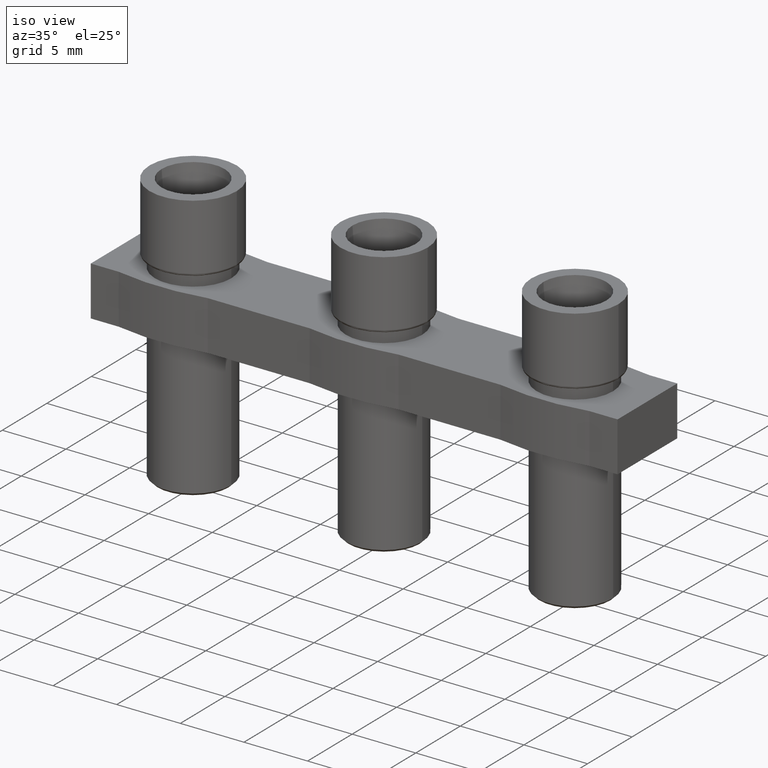
[diagram: clean part render]
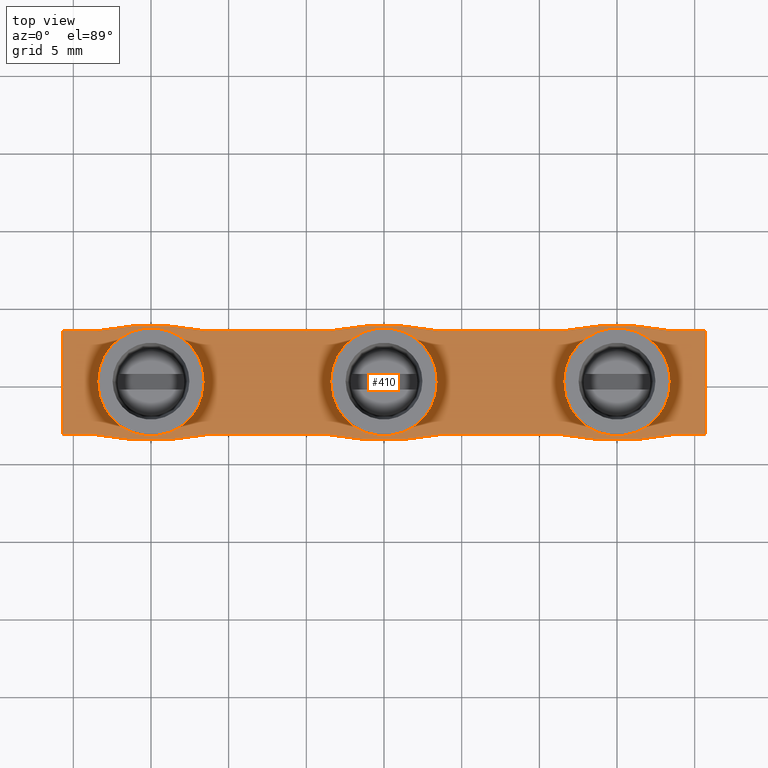
[diagram: tour spotlight — one face highlighted and labeled with its STEP entity id]
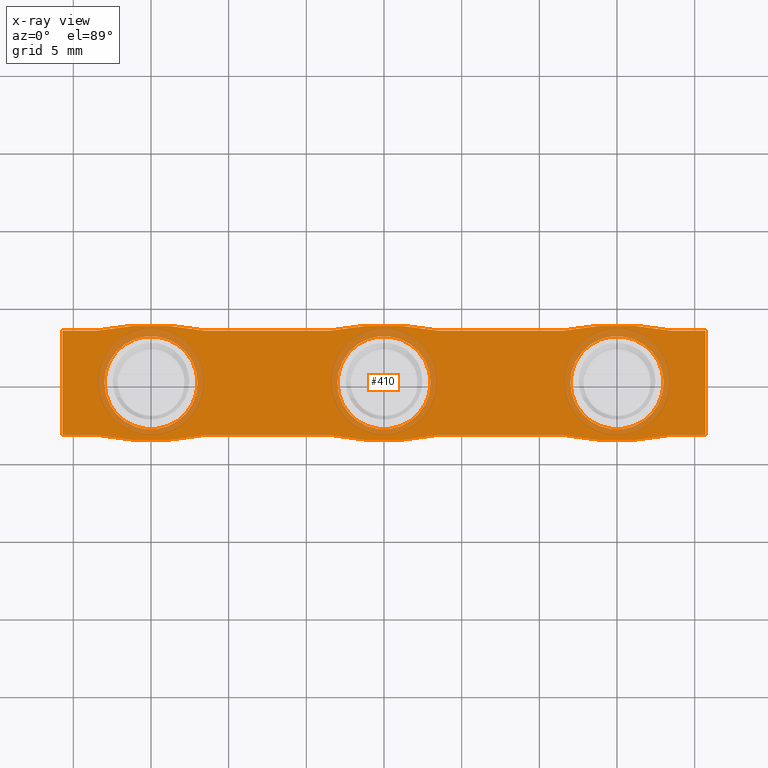
[diagram: x-ray of the same camera — body ghosted, this tour face saturated]
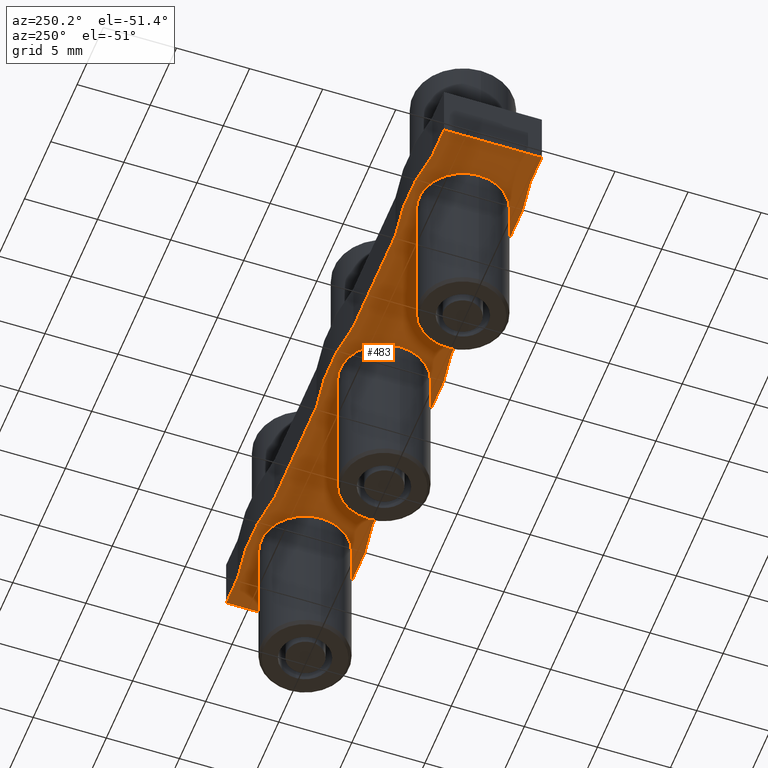
[diagram: tour spotlight — one face highlighted and labeled with its STEP entity id]
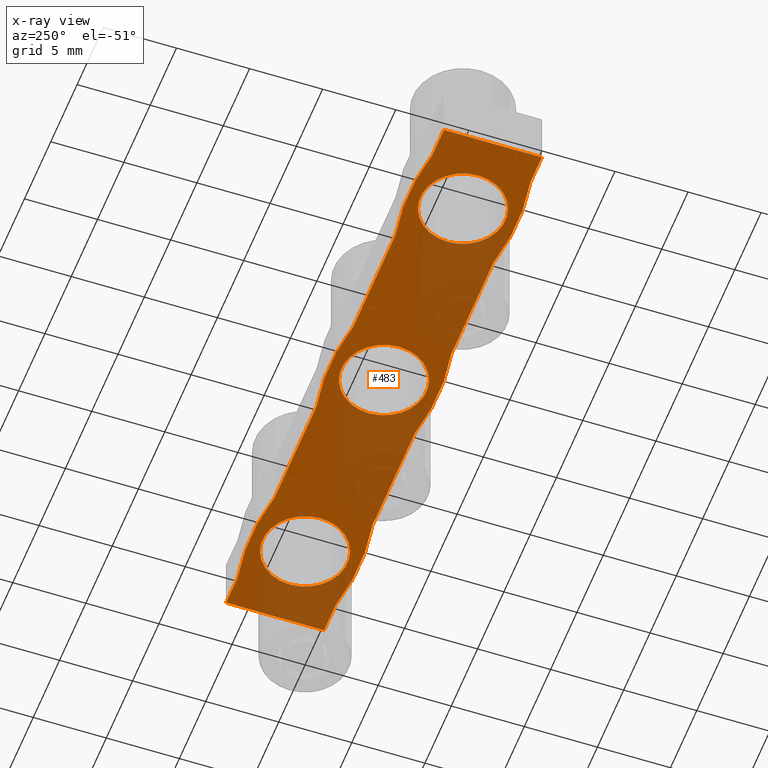
[diagram: x-ray of the same camera — body ghosted, this tour face saturated]
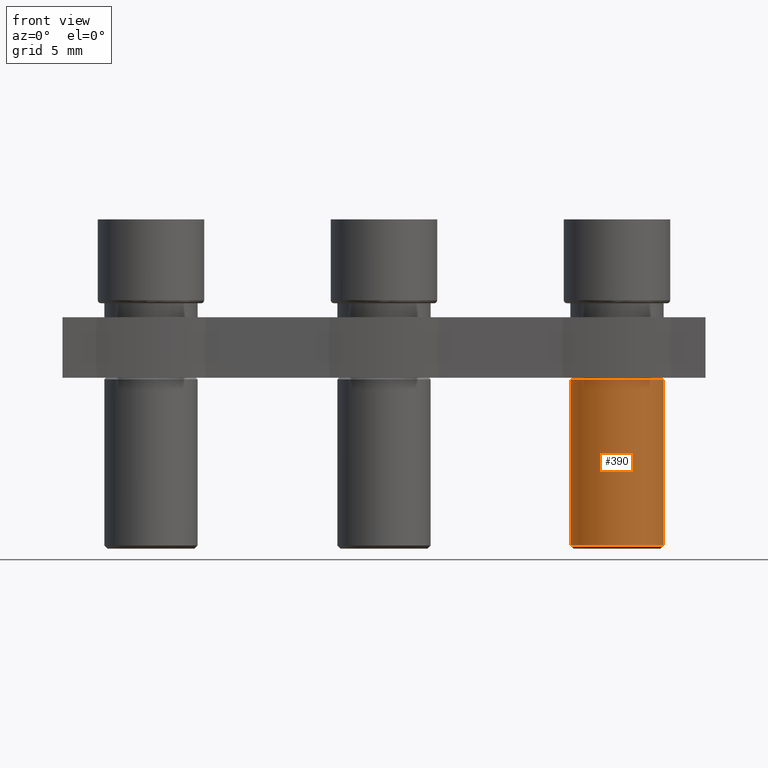
[diagram: tour spotlight — one face highlighted and labeled with its STEP entity id]
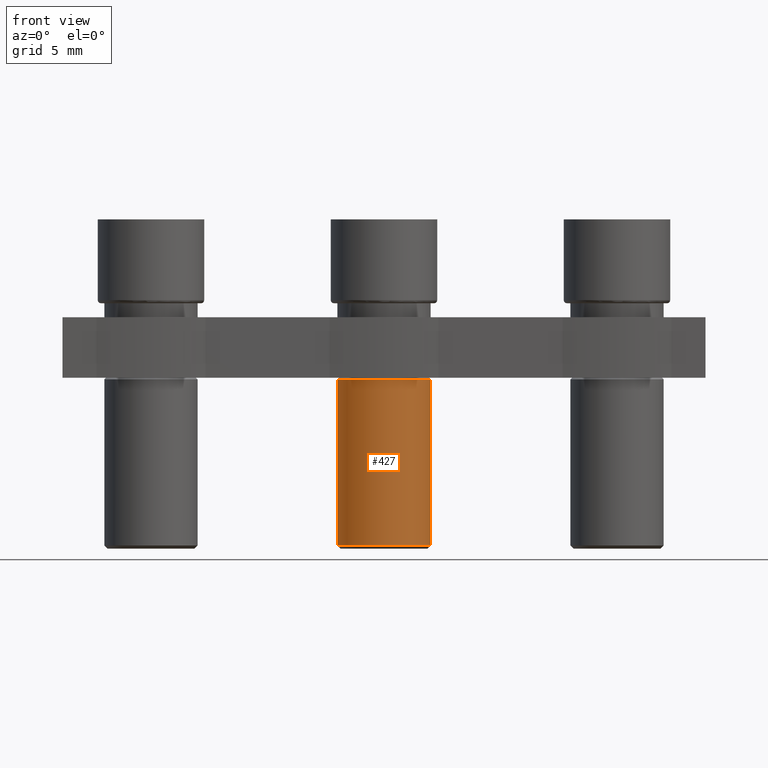
[diagram: tour spotlight — one face highlighted and labeled with its STEP entity id]
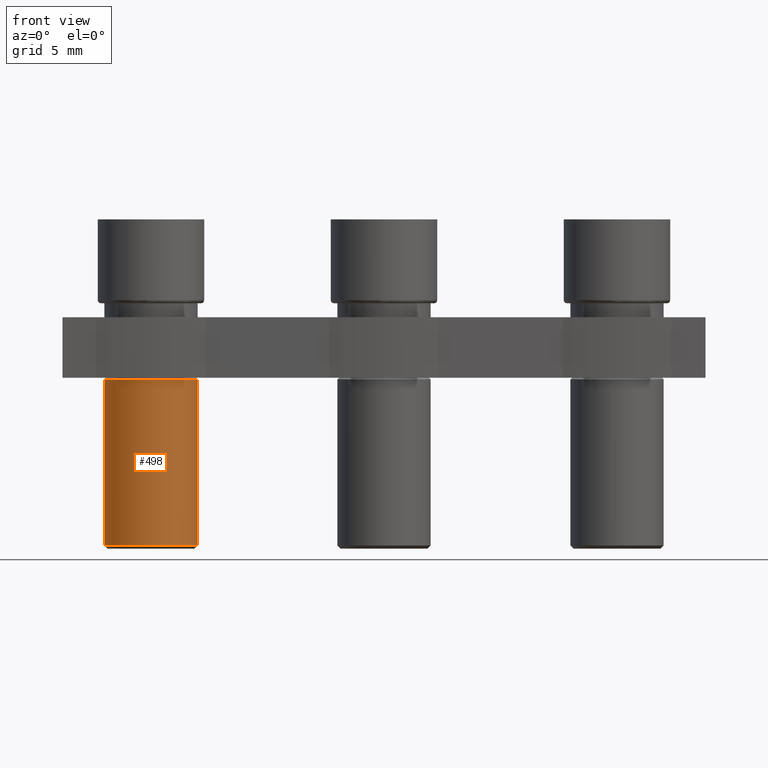
[diagram: tour spotlight — one face highlighted and labeled with its STEP entity id]
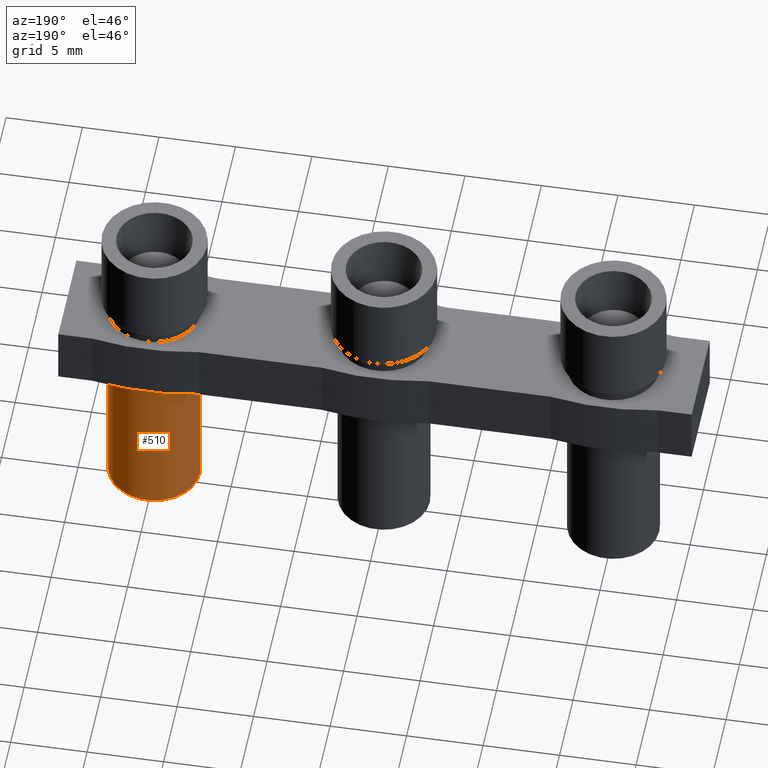
[diagram: tour spotlight — one face highlighted and labeled with its STEP entity id]
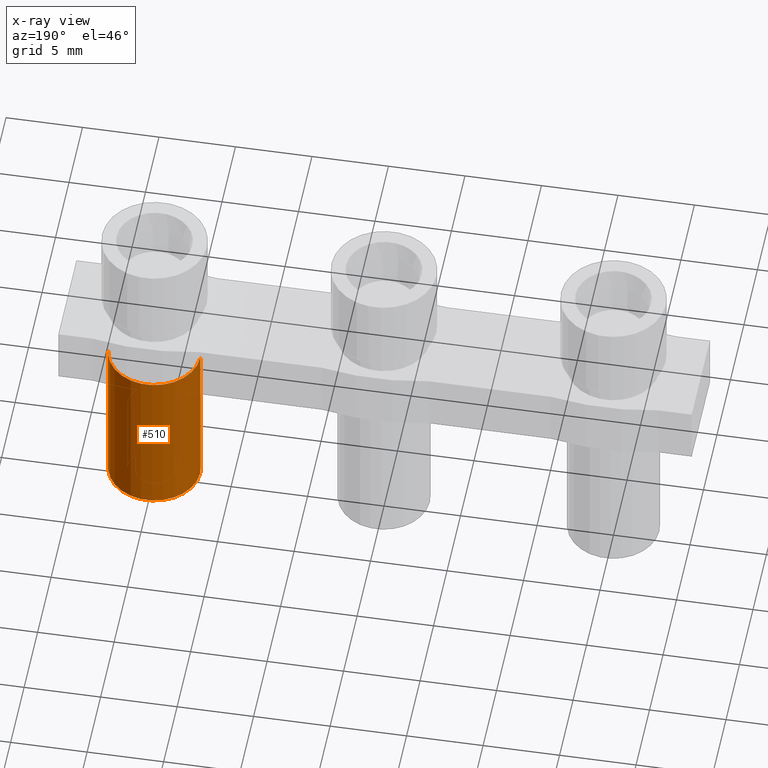
[diagram: x-ray of the same camera — body ghosted, this tour face saturated]
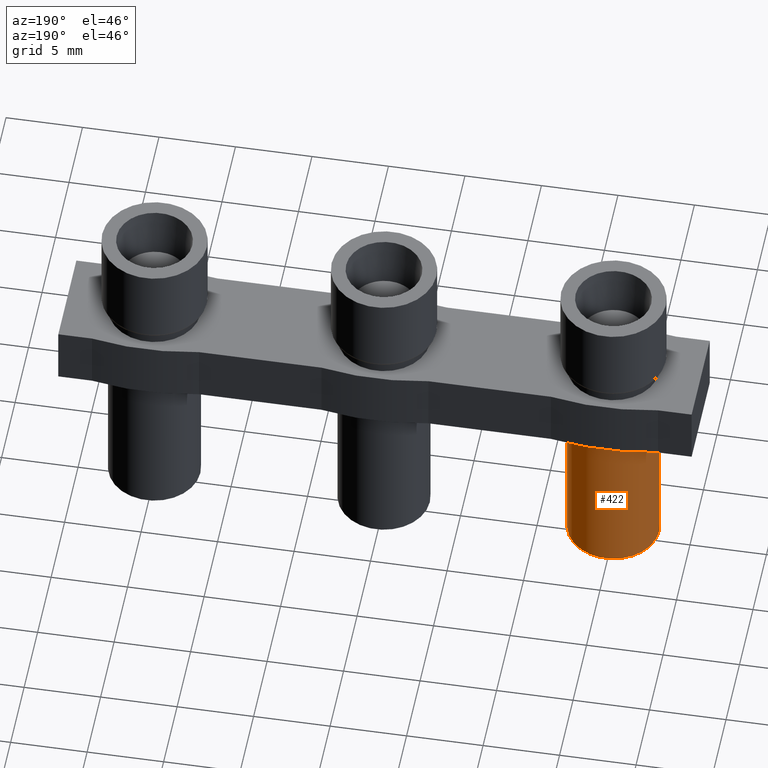
[diagram: tour spotlight — one face highlighted and labeled with its STEP entity id]
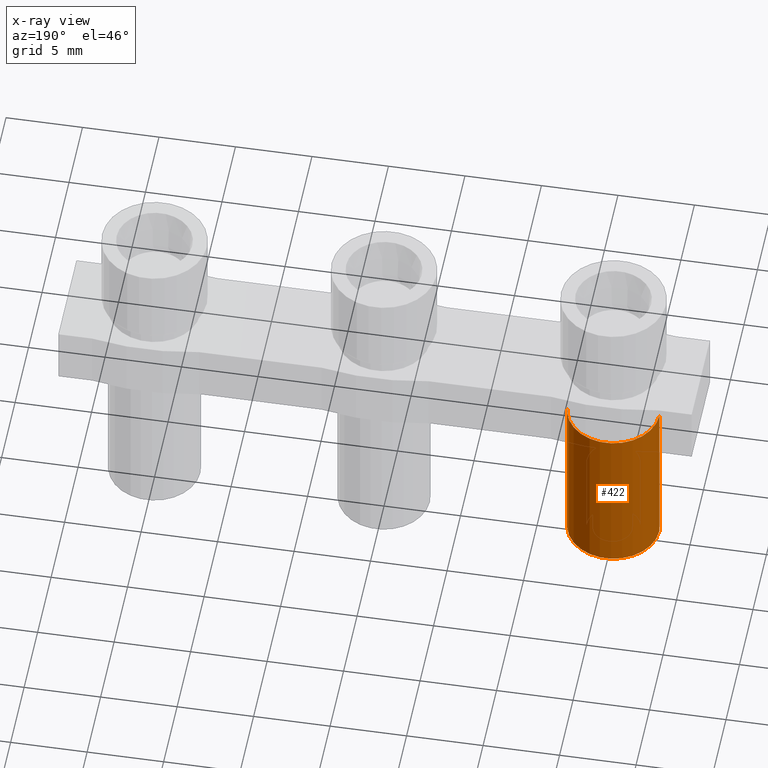
[diagram: x-ray of the same camera — body ghosted, this tour face saturated]
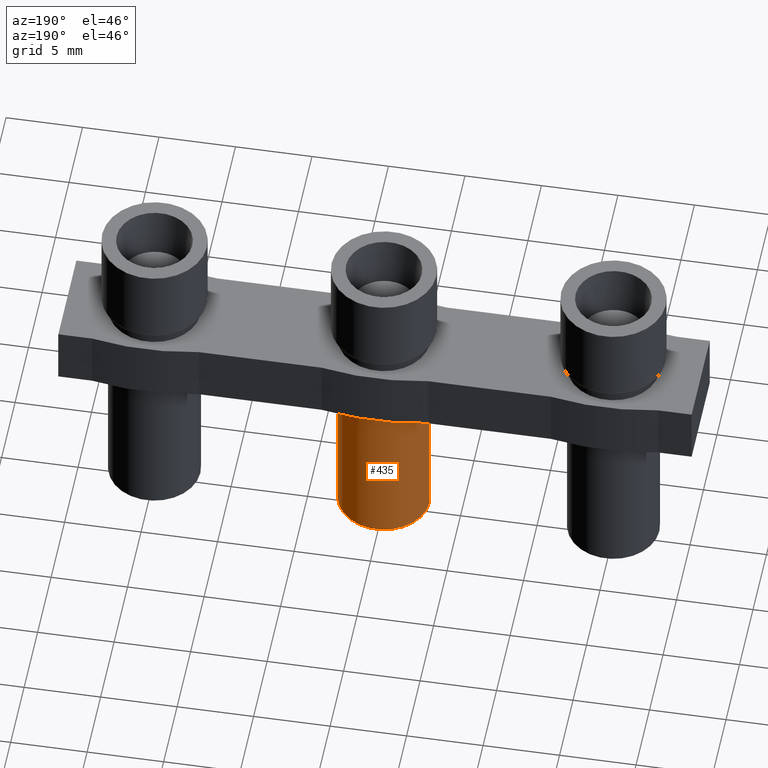
[diagram: tour spotlight — one face highlighted and labeled with its STEP entity id]
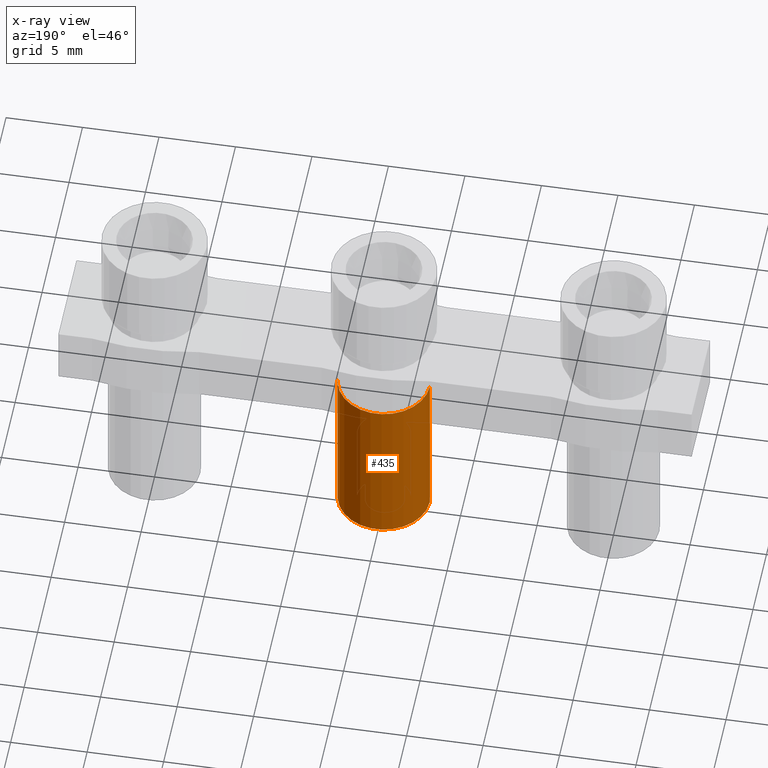
[diagram: x-ray of the same camera — body ghosted, this tour face saturated]
A machine part: a face-by-face anatomy tour. The part has 155 B-rep faces; the first image is the clean iso view, then the 8 largest visible faces are spotlighted one at a time (largest first), each with its STEP entity span.

Face 1 — top view, entity #410. An x-ray twin of the same camera follows (body ghosted, this face saturated) — the face is partly hidden behind the body. In plain terms, the highlighted planar face has unit normal (0, 0, -1).
Definition (entity closure, byte-faithful):
#78 = EDGE_CURVE ( 'NONE', #4254, #4168, #5095, .T. ) ;
#88 = EDGE_CURVE ( 'NONE', #4270, #4302, #5099, .T. ) ;
#134 = EDGE_CURVE ( 'NONE', #4241, #4343, #5175, .T. ) ;
#136 = EDGE_CURVE ( 'NONE', #4194, #4188, #5116, .T. ) ;
#139 = EDGE_CURVE ( 'NONE', #4240, #4282, #3700, .T. ) ;
#159 = EDGE_CURVE ( 'NONE', #4235, #4263, #3804, .T. ) ;
#173 = EDGE_CURVE ( 'NONE', #4283, #4241, #3832, .T. ) ;
#177 = EDGE_CURVE ( 'NONE', #4168, #4254, #5227, .T. ) ;
#179 = EDGE_CURVE ( 'NONE', #4343, #4235, #3830, .T. ) ;
#182 = EDGE_CURVE ( 'NONE', #4263, #4248, #3817, .T. ) ;
#184 = EDGE_CURVE ( 'NONE', #4188, #4194, #5199, .T. ) ;
#187 = EDGE_CURVE ( 'NONE', #4248, #4222, #5223, .T. ) ;
#194 = EDGE_CURVE ( 'NONE', #4273, #4278, #3860, .T. ) ;
#206 = EDGE_CURVE ( 'NONE', #4221, #4260, #3917, .T. ) ;
#219 = EDGE_CURVE ( 'NONE', #4222, #4304, #4035, .T. ) ;
#227 = EDGE_CURVE ( 'NONE', #4230, #4342, #4037, .T. ) ;
#229 = EDGE_CURVE ( 'NONE', #4273, #4304, #5255, .T. ) ;
#230 = EDGE_CURVE ( 'NONE', #4342, #4240, #4013, .T. ) ;
#235 = EDGE_CURVE ( 'NONE', #4282, #4278, #5278, .T. ) ;
#246 = EDGE_CURVE ( 'NONE', #4302, #4270, #5267, .T. ) ;
#255 = EDGE_CURVE ( 'NONE', #4283, #4260, #5337, .T. ) ;
#256 = EDGE_CURVE ( 'NONE', #4221, #4230, #5319, .T. ) ;
#410 = ADVANCED_FACE ( 'NONE', ( #2286, #2279, #2289, #2306 ), #2264, .F. ) ;
#639 = ORIENTED_EDGE ( 'NONE', *, *, #219, .T. ) ;
#640 = ORIENTED_EDGE ( 'NONE', *, *, #235, .F. ) ;
#641 = ORIENTED_EDGE ( 'NONE', *, *, #179, .T. ) ;
#642 = ORIENTED_EDGE ( 'NONE', *, *, #229, .F. ) ;
#643 = ORIENTED_EDGE ( 'NONE', *, *, #206, .T. ) ;
#646 = ORIENTED_EDGE ( 'NONE', *, *, #177, .F. ) ;
#647 = ORIENTED_EDGE ( 'NONE', *, *, #182, .T. ) ;
#648 = ORIENTED_EDGE ( 'NONE', *, *, #187, .T. ) ;
#649 = ORIENTED_EDGE ( 'NONE', *, *, #173, .T. ) ;
#652 = ORIENTED_EDGE ( 'NONE', *, *, #227, .F. ) ;
#654 = ORIENTED_EDGE ( 'NONE', *, *, #134, .T. ) ;
#655 = ORIENTED_EDGE ( 'NONE', *, *, #139, .F. ) ;
#656 = ORIENTED_EDGE ( 'NONE', *, *, #230, .F. ) ;
#657 = ORIENTED_EDGE ( 'NONE', *, *, #136, .T. ) ;
#658 = ORIENTED_EDGE ( 'NONE', *, *, #184, .T. ) ;
#659 = ORIENTED_EDGE ( 'NONE', *, *, #255, .F. ) ;
#660 = ORIENTED_EDGE ( 'NONE', *, *, #194, .T. ) ;
#662 = ORIENTED_EDGE ( 'NONE', *, *, #159, .T. ) ;
#669 = ORIENTED_EDGE ( 'NONE', *, *, #78, .F. ) ;
#672 = ORIENTED_EDGE ( 'NONE', *, *, #256, .F. ) ;
#676 = ORIENTED_EDGE ( 'NONE', *, *, #246, .T. ) ;
#680 = EDGE_LOOP ( 'NONE', ( #4144, #676 ) ) ;
#688 = EDGE_LOOP ( 'NONE', ( #646, #669 ) ) ;
#713 = EDGE_LOOP ( 'NONE', ( #657, #658 ) ) ;
#795 = EDGE_LOOP ( 'NONE', ( #643, #659, #649, #654, #641, #662, #647, #648, #639, #642, #660, #640, #655, #656, #652, #672 ) ) ;
#1425 = DIRECTION ( 'NONE',  ( -0.0000000000000000000, -0.0000000000000000000, -1.000000000000000000 ) ) ;
#1432 = CARTESIAN_POINT ( 'NONE',  ( 15.00000000000164800, -13.97500000000478700, -0.9000000000000014700 ) ) ;
#1435 = DIRECTION ( 'NONE',  ( 1.000000000000000000, 2.944367993170586000E-016, 0.0000000000000000000 ) ) ;
#1438 = DIRECTION ( 'NONE',  ( 1.000000000000000000, 2.944367993170586000E-016, 0.0000000000000000000 ) ) ;
#1442 = DIRECTION ( 'NONE',  ( -0.0000000000000000000, -0.0000000000000000000, -1.000000000000000000 ) ) ;
#1454 = CARTESIAN_POINT ( 'NONE',  ( 30.00000000000165200, -13.97500000000472700, -0.9000000000000014700 ) ) ;
#2264 = PLANE ( 'NONE',  #4844 ) ;
#2279 = FACE_BOUND ( 'NONE', #713, .T. ) ;
#2281 = DIRECTION ( 'NONE',  ( -1.000000000000000000, 0.0000000000000000000, -0.0000000000000000000 ) ) ;
#2286 = FACE_OUTER_BOUND ( 'NONE', #795, .T. ) ;
#2289 = FACE_BOUND ( 'NONE', #688, .T. ) ;
#2296 = CARTESIAN_POINT ( 'NONE',  ( -47.85000000000001600, -3.349999999999866400, -0.9000000000000014700 ) ) ;
#2303 = DIRECTION ( 'NONE',  ( 0.0000000000000000000, 0.0000000000000000000, -1.000000000000000000 ) ) ;
#2306 = FACE_BOUND ( 'NONE', #680, .T. ) ;
#2462 = CARTESIAN_POINT ( 'NONE',  ( 30.00000000000165200, 6.243429516965604400E-014, -0.9000000000000014700 ) ) ;
#2464 = DIRECTION ( 'NONE',  ( 0.0000000000000000000, 0.0000000000000000000, -1.000000000000000000 ) ) ;
#2487 = DIRECTION ( 'NONE',  ( 1.000000000000000000, 2.491358183583695200E-016, 0.0000000000000000000 ) ) ;
#2576 = CARTESIAN_POINT ( 'NONE',  ( 12.00000000000165200, 7.537171428686701700E-016, -0.9000000000000014700 ) ) ;
#2579 = CARTESIAN_POINT ( 'NONE',  ( -2.999999999999999100, 0.0000000000000000000, -0.9000000000000014700 ) ) ;
#2585 = CARTESIAN_POINT ( 'NONE',  ( 33.50000000000169800, 3.350000000000149300, -0.9000000000000014700 ) ) ;
#2587 = CARTESIAN_POINT ( 'NONE',  ( 18.00000000000164800, 2.615926092763103100E-015, -0.9000000000000014700 ) ) ;
#2594 = CARTESIAN_POINT ( 'NONE',  ( 26.50000000000156000, 3.350000000000141800, -0.9000000000000014700 ) ) ;
#2606 = CARTESIAN_POINT ( 'NONE',  ( 3.500000000001742600, -3.349999999999943200, -0.9000000000000014700 ) ) ;
#2615 = CARTESIAN_POINT ( 'NONE',  ( 35.70000000000164400, -3.349999999999852700, -0.9000000000000014700 ) ) ;
#2623 = CARTESIAN_POINT ( 'NONE',  ( 3.500000000000087900, 3.350000000000080500, -0.9000000000000014700 ) ) ;
#2633 = CARTESIAN_POINT ( 'NONE',  ( -3.500000000002025000, -3.349999999999915700, -0.9000000000000014700 ) ) ;
#2638 = CARTESIAN_POINT ( 'NONE',  ( -5.700000000000000200, 3.350000000000084500, -0.9000000000000014700 ) ) ;
#2648 = CARTESIAN_POINT ( 'NONE',  ( 2.999999999999999100, 3.673940397442058900E-016, -0.9000000000000014700 ) ) ;
#2654 = CARTESIAN_POINT ( 'NONE',  ( 18.50000000000169500, 3.350000000000141800, -0.9000000000000014700 ) ) ;
#2655 = CARTESIAN_POINT ( 'NONE',  ( 11.50000000000156100, 3.350000000000081400, -0.9000000000000014700 ) ) ;
#2657 = CARTESIAN_POINT ( 'NONE',  ( 33.00000000000165600, 6.318170262473114700E-014, -0.9000000000000014700 ) ) ;
#2665 = CARTESIAN_POINT ( 'NONE',  ( 18.50000000000169500, -3.349999999999860200, -0.9000000000000014700 ) ) ;
#2667 = CARTESIAN_POINT ( 'NONE',  ( 27.00000000000165200, 6.131949367483672300E-014, -0.9000000000000014700 ) ) ;
#2669 = CARTESIAN_POINT ( 'NONE',  ( -5.699999999999996600, -3.349999999999916600, -0.9000000000000014700 ) ) ;
#2670 = CARTESIAN_POINT ( 'NONE',  ( 11.49999999999990900, -3.349999999999942400, -0.9000000000000014700 ) ) ;
#2682 = CARTESIAN_POINT ( 'NONE',  ( 33.50000000000368100, -3.349999999999852200, -0.9000000000000014700 ) ) ;
#2692 = CARTESIAN_POINT ( 'NONE',  ( 26.49999999999990800, -3.349999999999881500, -0.9000000000000014700 ) ) ;
#3689 = CARTESIAN_POINT ( 'NONE',  ( 5.128276275852789100E-015, -13.97500000000478900, -0.9000000000000014700 ) ) ;
#3690 = DIRECTION ( 'NONE',  ( -1.000000000000000000, 0.0000000000000000000, 0.0000000000000000000 ) ) ;
#3695 = DIRECTION ( 'NONE',  ( 0.0000000000000000000, 0.0000000000000000000, 1.000000000000000000 ) ) ;
#3699 = CARTESIAN_POINT ( 'NONE',  ( 15.00000000000165000, 1.868518637687989600E-015, -0.9000000000000014700 ) ) ;
#3700 = LINE ( 'NONE', #3723, #5161 ) ;
#3704 = DIRECTION ( 'NONE',  ( 0.0000000000000000000, 0.0000000000000000000, -1.000000000000000000 ) ) ;
#3705 = DIRECTION ( 'NONE',  ( -1.000000000000000000, -1.245679091791855700E-016, -0.0000000000000000000 ) ) ;
#3711 = DIRECTION ( 'NONE',  ( 1.000000000000000000, 2.491358183583712400E-016, 0.0000000000000000000 ) ) ;
#3723 = CARTESIAN_POINT ( 'NONE',  ( 13.85000000000164300, -3.349999999999855300, -0.9000000000000014700 ) ) ;
#3797 = CARTESIAN_POINT ( 'NONE',  ( -5.699999999999996600, -3.349999999999916200, -0.9000000000000014700 ) ) ;
#3801 = DIRECTION ( 'NONE',  ( 2.009125974575783600E-016, -1.000000000000000000, 0.0000000000000000000 ) ) ;
#3804 = LINE ( 'NONE', #3797, #5182 ) ;
#3816 = DIRECTION ( 'NONE',  ( -1.000000000000000000, -1.245679091791856200E-016, -0.0000000000000000000 ) ) ;
#3817 = LINE ( 'NONE', #3819, #5178 ) ;
#3819 = CARTESIAN_POINT ( 'NONE',  ( 16.15000000000000900, -3.349999999999913900, -0.9000000000000014700 ) ) ;
#3820 = DIRECTION ( 'NONE',  ( -1.000000000000000000, -1.245679091791856200E-016, -0.0000000000000000000 ) ) ;
#3824 = CARTESIAN_POINT ( 'NONE',  ( 31.15000000000001300, 3.350000000000084500, -0.9000000000000014700 ) ) ;
#3830 = LINE ( 'NONE', #3831, #5212 ) ;
#3831 = CARTESIAN_POINT ( 'NONE',  ( 16.15000000000000900, 3.350000000000087100, -0.9000000000000014700 ) ) ;
#3832 = LINE ( 'NONE', #3824, #5219 ) ;
#3842 = DIRECTION ( 'NONE',  ( -1.000000000000000000, 0.0000000000000000000, 0.0000000000000000000 ) ) ;
#3849 = CARTESIAN_POINT ( 'NONE',  ( 0.0000000000000000000, 0.0000000000000000000, -0.9000000000000014700 ) ) ;
#3850 = DIRECTION ( 'NONE',  ( 0.0000000000000000000, 0.0000000000000000000, 1.000000000000000000 ) ) ;
#3852 = DIRECTION ( 'NONE',  ( 1.000000000000000000, 1.245679091791856200E-016, -0.0000000000000000000 ) ) ;
#3855 = CARTESIAN_POINT ( 'NONE',  ( 46.15000000000001300, -3.349999999999856600, -0.9000000000000014700 ) ) ;
#3857 = DIRECTION ( 'NONE',  ( 1.000000000000000000, 0.0000000000000000000, 0.0000000000000000000 ) ) ;
#3860 = LINE ( 'NONE', #3855, #5224 ) ;
#3861 = DIRECTION ( 'NONE',  ( 1.000000000000000000, 2.491358183583712400E-016, 0.0000000000000000000 ) ) ;
#3864 = CARTESIAN_POINT ( 'NONE',  ( 1.734289795103002200E-015, 13.97500000000478900, -0.9000000000000014700 ) ) ;
#3881 = CARTESIAN_POINT ( 'NONE',  ( 15.00000000000165000, 1.868518637687989600E-015, -0.9000000000000014700 ) ) ;
#3885 = DIRECTION ( 'NONE',  ( 1.000000000000000000, 1.245679091791856200E-016, -0.0000000000000000000 ) ) ;
#3893 = DIRECTION ( 'NONE',  ( 0.0000000000000000000, 0.0000000000000000000, -1.000000000000000000 ) ) ;
#3897 = DIRECTION ( 'NONE',  ( 0.0000000000000000000, 0.0000000000000000000, 1.000000000000000000 ) ) ;
#3907 = DIRECTION ( 'NONE',  ( -1.000000000000000000, -1.245679091791856200E-016, -0.0000000000000000000 ) ) ;
#3917 = LINE ( 'NONE', #3936, #5271 ) ;
#3936 = CARTESIAN_POINT ( 'NONE',  ( 46.15000000000001300, 3.350000000000145300, -0.9000000000000014700 ) ) ;
#4013 = LINE ( 'NONE', #4020, #5262 ) ;
#4018 = DIRECTION ( 'NONE',  ( 1.000000000000000000, 1.245679091791856200E-016, -0.0000000000000000000 ) ) ;
#4020 = CARTESIAN_POINT ( 'NONE',  ( 35.70000000000164400, -3.349999999999852200, -0.9000000000000014700 ) ) ;
#4028 = DIRECTION ( 'NONE',  ( 1.000000000000000000, 1.245679091791855700E-016, -0.0000000000000000000 ) ) ;
#4035 = LINE ( 'NONE', #4045, #5246 ) ;
#4037 = LINE ( 'NONE', #4039, #5286 ) ;
#4039 = CARTESIAN_POINT ( 'NONE',  ( 13.85000000000164300, 3.350000000000145800, -0.9000000000000014700 ) ) ;
#4045 = CARTESIAN_POINT ( 'NONE',  ( 31.15000000000001300, -3.349999999999917500, -0.9000000000000014700 ) ) ;
#4050 = DIRECTION ( 'NONE',  ( -1.000000000000000000, -2.944367993170586500E-016, 0.0000000000000000000 ) ) ;
#4051 = CARTESIAN_POINT ( 'NONE',  ( 15.00000000000164500, 13.97500000000479000, -0.9000000000000014700 ) ) ;
#4056 = DIRECTION ( 'NONE',  ( -0.0000000000000000000, -0.0000000000000000000, -1.000000000000000000 ) ) ;
#4059 = DIRECTION ( 'NONE',  ( -0.0000000000000000000, -0.0000000000000000000, -1.000000000000000000 ) ) ;
#4064 = DIRECTION ( 'NONE',  ( 4.822322090079283200E-017, -1.000000000000000000, 0.0000000000000000000 ) ) ;
#4092 = CARTESIAN_POINT ( 'NONE',  ( 30.00000000000164500, 13.97500000000485100, -0.9000000000000014700 ) ) ;
#4094 = DIRECTION ( 'NONE',  ( -1.000000000000000000, -2.944367993170586500E-016, 0.0000000000000000000 ) ) ;
#4144 = ORIENTED_EDGE ( 'NONE', *, *, #88, .T. ) ;
#4168 = VERTEX_POINT ( 'NONE', #2579 ) ;
#4188 = VERTEX_POINT ( 'NONE', #2576 ) ;
#4194 = VERTEX_POINT ( 'NONE', #2587 ) ;
#4221 = VERTEX_POINT ( 'NONE', #2594 ) ;
#4222 = VERTEX_POINT ( 'NONE', #2606 ) ;
#4230 = VERTEX_POINT ( 'NONE', #2585 ) ;
#4235 = VERTEX_POINT ( 'NONE', #2638 ) ;
#4240 = VERTEX_POINT ( 'NONE', #2615 ) ;
#4241 = VERTEX_POINT ( 'NONE', #2623 ) ;
#4248 = VERTEX_POINT ( 'NONE', #2633 ) ;
#4254 = VERTEX_POINT ( 'NONE', #2648 ) ;
#4260 = VERTEX_POINT ( 'NONE', #2654 ) ;
#4263 = VERTEX_POINT ( 'NONE', #2669 ) ;
#4270 = VERTEX_POINT ( 'NONE', #2657 ) ;
#4273 = VERTEX_POINT ( 'NONE', #2665 ) ;
#4278 = VERTEX_POINT ( 'NONE', #2692 ) ;
#4282 = VERTEX_POINT ( 'NONE', #2682 ) ;
#4283 = VERTEX_POINT ( 'NONE', #2655 ) ;
#4302 = VERTEX_POINT ( 'NONE', #2667 ) ;
#4304 = VERTEX_POINT ( 'NONE', #2670 ) ;
#4342 = VERTEX_POINT ( 'NONE', #4674 ) ;
#4343 = VERTEX_POINT ( 'NONE', #4717 ) ;
#4464 = DIRECTION ( 'NONE',  ( 0.0000000000000000000, 0.0000000000000000000, 1.000000000000000000 ) ) ;
#4467 = CARTESIAN_POINT ( 'NONE',  ( 0.0000000000000000000, 0.0000000000000000000, -0.9000000000000014700 ) ) ;
#4468 = DIRECTION ( 'NONE',  ( -1.000000000000000000, 0.0000000000000000000, 0.0000000000000000000 ) ) ;
#4486 = CARTESIAN_POINT ( 'NONE',  ( 30.00000000000165200, 6.243429516965604400E-014, -0.9000000000000014700 ) ) ;
#4516 = DIRECTION ( 'NONE',  ( 1.000000000000000000, 2.491358183583695200E-016, 0.0000000000000000000 ) ) ;
#4530 = DIRECTION ( 'NONE',  ( 0.0000000000000000000, 0.0000000000000000000, -1.000000000000000000 ) ) ;
#4674 = CARTESIAN_POINT ( 'NONE',  ( 35.70000000000164400, 3.350000000000148400, -0.9000000000000014700 ) ) ;
#4717 = CARTESIAN_POINT ( 'NONE',  ( -3.500000000000049700, 3.350000000000085800, -0.9000000000000014700 ) ) ;
#4844 = AXIS2_PLACEMENT_3D ( 'NONE', #2296, #2303, #2281 ) ;
#5081 = AXIS2_PLACEMENT_3D ( 'NONE', #4486, #4530, #4516 ) ;
#5095 = CIRCLE ( 'NONE', #5104, 2.999999999999999100 ) ;
#5099 = CIRCLE ( 'NONE', #5081, 3.000000000000002700 ) ;
#5104 = AXIS2_PLACEMENT_3D ( 'NONE', #4467, #4464, #4468 ) ;
#5116 = CIRCLE ( 'NONE', #5138, 2.999999999999999100 ) ;
#5136 = AXIS2_PLACEMENT_3D ( 'NONE', #3689, #3695, #3690 ) ;
#5138 = AXIS2_PLACEMENT_3D ( 'NONE', #3699, #3704, #3711 ) ;
#5161 = VECTOR ( 'NONE', #3705, 1000.000000000000000 ) ;
#5175 = CIRCLE ( 'NONE', #5136, 17.67500000000479000 ) ;
#5178 = VECTOR ( 'NONE', #3852, 1000.000000000000000 ) ;
#5182 = VECTOR ( 'NONE', #3801, 1000.000000000000000 ) ;
#5199 = CIRCLE ( 'NONE', #5202, 2.999999999999999100 ) ;
#5202 = AXIS2_PLACEMENT_3D ( 'NONE', #3881, #3893, #3861 ) ;
#5208 = AXIS2_PLACEMENT_3D ( 'NONE', #3849, #3850, #3842 ) ;
#5212 = VECTOR ( 'NONE', #3820, 1000.000000000000000 ) ;
#5219 = VECTOR ( 'NONE', #3816, 1000.000000000000000 ) ;
#5223 = CIRCLE ( 'NONE', #5229, 17.67500000000478600 ) ;
#5224 = VECTOR ( 'NONE', #3885, 1000.000000000000000 ) ;
#5227 = CIRCLE ( 'NONE', #5208, 2.999999999999999100 ) ;
#5229 = AXIS2_PLACEMENT_3D ( 'NONE', #3864, #3897, #3857 ) ;
#5242 = AXIS2_PLACEMENT_3D ( 'NONE', #2462, #2464, #2487 ) ;
#5246 = VECTOR ( 'NONE', #4018, 1000.000000000000000 ) ;
#5255 = CIRCLE ( 'NONE', #5273, 17.67500000000478600 ) ;
#5262 = VECTOR ( 'NONE', #4064, 1000.000000000000000 ) ;
#5267 = CIRCLE ( 'NONE', #5242, 3.000000000000002700 ) ;
#5271 = VECTOR ( 'NONE', #3907, 1000.000000000000000 ) ;
#5273 = AXIS2_PLACEMENT_3D ( 'NONE', #4051, #4056, #4050 ) ;
#5278 = CIRCLE ( 'NONE', #5281, 17.67500000000478600 ) ;
#5281 = AXIS2_PLACEMENT_3D ( 'NONE', #4092, #4059, #4094 ) ;
#5286 = VECTOR ( 'NONE', #4028, 1000.000000000000000 ) ;
#5303 = AXIS2_PLACEMENT_3D ( 'NONE', #1432, #1425, #1438 ) ;
#5319 = CIRCLE ( 'NONE', #5334, 17.67500000000479000 ) ;
#5334 = AXIS2_PLACEMENT_3D ( 'NONE', #1454, #1442, #1435 ) ;
#5337 = CIRCLE ( 'NONE', #5303, 17.67500000000479000 ) ;

Face 2 — auxiliary view, entity #483. An x-ray twin of the same camera follows (body ghosted, this face saturated) — the face is partly hidden behind the body. In plain terms, the highlighted planar face has unit normal (0, 0, -1).
Definition (entity closure, byte-faithful):
#53 = EDGE_CURVE ( 'NONE', #4216, #4207, #5043, .T. ) ;
#138 = EDGE_CURVE ( 'NONE', #4334, #4259, #5127, .T. ) ;
#146 = EDGE_CURVE ( 'NONE', #4267, #4253, #5176, .T. ) ;
#156 = EDGE_CURVE ( 'NONE', #4271, #4169, #5195, .T. ) ;
#160 = EDGE_CURVE ( 'NONE', #4224, #4249, #5216, .T. ) ;
#162 = EDGE_CURVE ( 'NONE', #4227, #4280, #3798, .T. ) ;
#164 = EDGE_CURVE ( 'NONE', #4169, #4271, #5220, .T. ) ;
#166 = EDGE_CURVE ( 'NONE', #4340, #4264, #5206, .T. ) ;
#168 = EDGE_CURVE ( 'NONE', #4259, #4224, #3777, .T. ) ;
#171 = EDGE_CURVE ( 'NONE', #4281, #4225, #3786, .T. ) ;
#172 = EDGE_CURVE ( 'NONE', #4244, #4269, #3790, .T. ) ;
#202 = EDGE_CURVE ( 'NONE', #4334, #4281, #3931, .T. ) ;
#207 = EDGE_CURVE ( 'NONE', #4207, #4216, #5252, .T. ) ;
#210 = EDGE_CURVE ( 'NONE', #4269, #4272, #3999, .T. ) ;
#216 = EDGE_CURVE ( 'NONE', #4227, #4272, #5260, .T. ) ;
#218 = EDGE_CURVE ( 'NONE', #4279, #4340, #4010, .T. ) ;
#220 = EDGE_CURVE ( 'NONE', #4249, #4233, #4041, .T. ) ;
#249 = EDGE_CURVE ( 'NONE', #4274, #4244, #2480, .T. ) ;
#251 = EDGE_CURVE ( 'NONE', #4274, #4233, #5265, .T. ) ;
#252 = EDGE_CURVE ( 'NONE', #4280, #4279, #5269, .T. ) ;
#253 = EDGE_CURVE ( 'NONE', #4225, #4264, #1418, .T. ) ;
#260 = EDGE_CURVE ( 'NONE', #4253, #4267, #5306, .T. ) ;
#483 = ADVANCED_FACE ( 'NONE', ( #3023, #3015, #2996, #3006 ), #3007, .T. ) ;
#587 = ORIENTED_EDGE ( 'NONE', *, *, #218, .T. ) ;
#588 = ORIENTED_EDGE ( 'NONE', *, *, #210, .T. ) ;
#590 = ORIENTED_EDGE ( 'NONE', *, *, #249, .T. ) ;
#593 = ORIENTED_EDGE ( 'NONE', *, *, #138, .T. ) ;
#595 = ORIENTED_EDGE ( 'NONE', *, *, #166, .T. ) ;
#603 = ORIENTED_EDGE ( 'NONE', *, *, #252, .T. ) ;
#604 = ORIENTED_EDGE ( 'NONE', *, *, #162, .T. ) ;
#605 = ORIENTED_EDGE ( 'NONE', *, *, #156, .F. ) ;
#607 = ORIENTED_EDGE ( 'NONE', *, *, #164, .F. ) ;
#613 = ORIENTED_EDGE ( 'NONE', *, *, #171, .F. ) ;
#615 = ORIENTED_EDGE ( 'NONE', *, *, #220, .T. ) ;
#616 = ORIENTED_EDGE ( 'NONE', *, *, #53, .T. ) ;
#617 = ORIENTED_EDGE ( 'NONE', *, *, #168, .T. ) ;
#621 = ORIENTED_EDGE ( 'NONE', *, *, #202, .F. ) ;
#622 = ORIENTED_EDGE ( 'NONE', *, *, #207, .T. ) ;
#624 = ORIENTED_EDGE ( 'NONE', *, *, #253, .F. ) ;
#628 = ORIENTED_EDGE ( 'NONE', *, *, #172, .T. ) ;
#629 = ORIENTED_EDGE ( 'NONE', *, *, #260, .F. ) ;
#632 = ORIENTED_EDGE ( 'NONE', *, *, #251, .F. ) ;
#633 = ORIENTED_EDGE ( 'NONE', *, *, #146, .F. ) ;
#634 = ORIENTED_EDGE ( 'NONE', *, *, #216, .F. ) ;
#636 = ORIENTED_EDGE ( 'NONE', *, *, #160, .T. ) ;
#710 = EDGE_LOOP ( 'NONE', ( #622, #616 ) ) ;
#728 = EDGE_LOOP ( 'NONE', ( #603, #587, #595, #624, #613, #621, #593, #617, #636, #615, #632, #590, #628, #588, #634, #604 ) ) ;
#730 = EDGE_LOOP ( 'NONE', ( #633, #629 ) ) ;
#735 = EDGE_LOOP ( 'NONE', ( #605, #607 ) ) ;
#1418 = LINE ( 'NONE', #1444, #5336 ) ;
#1423 = DIRECTION ( 'NONE',  ( 1.000000000000000000, -1.570329596357645900E-015, 0.0000000000000000000 ) ) ;
#1424 = DIRECTION ( 'NONE',  ( 1.000000000000000000, 2.491358183583728700E-016, 0.0000000000000000000 ) ) ;
#1427 = CARTESIAN_POINT ( 'NONE',  ( 1.734289795103002200E-015, 13.97500000000478900, -4.800000000000001600 ) ) ;
#1428 = DIRECTION ( 'NONE',  ( -0.0000000000000000000, 0.0000000000000000000, -1.000000000000000000 ) ) ;
#1430 = DIRECTION ( 'NONE',  ( -1.000000000000000000, 0.0000000000000000000, 0.0000000000000000000 ) ) ;
#1443 = DIRECTION ( 'NONE',  ( -0.0000000000000000000, -0.0000000000000000000, 1.000000000000000000 ) ) ;
#1444 = CARTESIAN_POINT ( 'NONE',  ( 92.85000000000167100, 3.350000000000162200, -4.800000000000001600 ) ) ;
#1447 = CARTESIAN_POINT ( 'NONE',  ( 15.00000000000164800, -13.97500000000478700, -4.800000000000001600 ) ) ;
#1449 = DIRECTION ( 'NONE',  ( -0.0000000000000000000, 0.0000000000000000000, -1.000000000000000000 ) ) ;
#1455 = CARTESIAN_POINT ( 'NONE',  ( 30.00167760659078200, 6.243471312154649800E-014, -4.799999999982577300 ) ) ;
#1459 = DIRECTION ( 'NONE',  ( -1.000000000000000000, -2.491358183583711900E-016, -0.0000000000000000000 ) ) ;
#2480 = LINE ( 'NONE', #2481, #5251 ) ;
#2481 = CARTESIAN_POINT ( 'NONE',  ( -62.85000000000001600, -3.349999999999916600, -4.800000000000001600 ) ) ;
#2490 = DIRECTION ( 'NONE',  ( -1.000000000000000000, 0.0000000000000000000, -0.0000000000000000000 ) ) ;
#2550 = CARTESIAN_POINT ( 'NONE',  ( 12.10167760657977700, 7.727151196616457800E-016, -4.799999999982577300 ) ) ;
#2595 = CARTESIAN_POINT ( 'NONE',  ( 18.50000000000279200, -3.349999999999858400, -4.800000000000001600 ) ) ;
#2596 = CARTESIAN_POINT ( 'NONE',  ( 35.70000000000164400, 3.350000000000148000, -4.800000000000001600 ) ) ;
#2599 = CARTESIAN_POINT ( 'NONE',  ( 2.898322393421874000, 3.612708057521423400E-016, -4.799999999982577300 ) ) ;
#2619 = CARTESIAN_POINT ( 'NONE',  ( -2.901677606600135700, 0.0000000000000000000, -4.799999999982577300 ) ) ;
#2620 = CARTESIAN_POINT ( 'NONE',  ( 3.500000000000087900, 3.350000000000080500, -4.800000000000001600 ) ) ;
#2628 = CARTESIAN_POINT ( 'NONE',  ( 3.500000000001739900, -3.349999999999943200, -4.800000000000001600 ) ) ;
#2630 = CARTESIAN_POINT ( 'NONE',  ( -5.699999999999996600, -3.349999999999916600, -4.800000000000001600 ) ) ;
#2641 = CARTESIAN_POINT ( 'NONE',  ( 11.49999999999991100, -3.349999999999942400, -4.800000000000001600 ) ) ;
#2644 = CARTESIAN_POINT ( 'NONE',  ( 18.50000000000144600, 3.350000000000150200, -4.800000000000001600 ) ) ;
#2646 = CARTESIAN_POINT ( 'NONE',  ( 17.90167760660178700, 2.591430462820474600E-015, -4.799999999982577300 ) ) ;
#2647 = CARTESIAN_POINT ( 'NONE',  ( 27.10167760657977700, 6.133849165162969700E-014, -4.799999999982577300 ) ) ;
#2651 = CARTESIAN_POINT ( 'NONE',  ( -5.699999999999996600, 3.350000000000084500, -4.800000000000001600 ) ) ;
#2658 = CARTESIAN_POINT ( 'NONE',  ( 32.90167760660178700, 6.315720699478853000E-014, -4.799999999982577300 ) ) ;
#2690 = CARTESIAN_POINT ( 'NONE',  ( -3.500000000000093700, 3.350000000000082200, -4.800000000000001600 ) ) ;
#2691 = CARTESIAN_POINT ( 'NONE',  ( 33.50000000000174100, 3.350000000000145300, -4.800000000000001600 ) ) ;
#2695 = CARTESIAN_POINT ( 'NONE',  ( 35.70000000000164400, -3.349999999999852700, -4.800000000000001600 ) ) ;
#2696 = CARTESIAN_POINT ( 'NONE',  ( 26.49999999999991100, -3.349999999999881500, -4.800000000000001600 ) ) ;
#2698 = CARTESIAN_POINT ( 'NONE',  ( 11.50000000000156100, 3.350000000000081400, -4.800000000000001600 ) ) ;
#2702 = CARTESIAN_POINT ( 'NONE',  ( -3.500000000000049300, -3.350000000000086700, -4.800000000000001600 ) ) ;
#2976 = DIRECTION ( 'NONE',  ( 0.0000000000000000000, 0.0000000000000000000, -1.000000000000000000 ) ) ;
#2989 = DIRECTION ( 'NONE',  ( -1.000000000000000000, 0.0000000000000000000, -0.0000000000000000000 ) ) ;
#2996 = FACE_BOUND ( 'NONE', #710, .T. ) ;
#3006 = FACE_BOUND ( 'NONE', #730, .T. ) ;
#3007 = PLANE ( 'NONE',  #4988 ) ;
#3015 = FACE_BOUND ( 'NONE', #735, .T. ) ;
#3023 = FACE_OUTER_BOUND ( 'NONE', #728, .T. ) ;
#3027 = CARTESIAN_POINT ( 'NONE',  ( -47.85000000000001600, -3.349999999999866400, -4.800000000000001600 ) ) ;
#3688 = CARTESIAN_POINT ( 'NONE',  ( 30.00000000000164500, 13.97500000000485100, -4.800000000000001600 ) ) ;
#3691 = DIRECTION ( 'NONE',  ( 1.000000000000000000, 2.944367993170586000E-016, 0.0000000000000000000 ) ) ;
#3708 = DIRECTION ( 'NONE',  ( -0.0000000000000000000, 0.0000000000000000000, -1.000000000000000000 ) ) ;
#3730 = DIRECTION ( 'NONE',  ( 1.000000000000000000, 2.491358183583728700E-016, 0.0000000000000000000 ) ) ;
#3745 = DIRECTION ( 'NONE',  ( -0.0000000000000000000, 0.0000000000000000000, -1.000000000000000000 ) ) ;
#3751 = CARTESIAN_POINT ( 'NONE',  ( 30.00167760659078200, 6.243471312154649800E-014, -4.799999999982577300 ) ) ;
#3767 = DIRECTION ( 'NONE',  ( 1.000000000000000000, -0.0000000000000000000, 0.0000000000000000000 ) ) ;
#3768 = DIRECTION ( 'NONE',  ( 1.000000000000000000, 2.491358183583712400E-016, 0.0000000000000000000 ) ) ;
#3772 = DIRECTION ( 'NONE',  ( -0.0000000000000000000, 0.0000000000000000000, -1.000000000000000000 ) ) ;
#3774 = DIRECTION ( 'NONE',  ( -0.0000000000000000000, 0.0000000000000000000, -1.000000000000000000 ) ) ;
#3776 = DIRECTION ( 'NONE',  ( -0.0000000000000000000, 0.0000000000000000000, -1.000000000000000000 ) ) ;
#3777 = LINE ( 'NONE', #3782, #5185 ) ;
#3780 = CARTESIAN_POINT ( 'NONE',  ( 15.00000000000164500, 13.97500000000479000, -4.800000000000001600 ) ) ;
#3782 = CARTESIAN_POINT ( 'NONE',  ( -47.85000000000001600, -3.349999999999858400, -4.800000000000001600 ) ) ;
#3784 = DIRECTION ( 'NONE',  ( -1.000000000000000000, 0.0000000000000000000, -0.0000000000000000000 ) ) ;
#3786 = LINE ( 'NONE', #3837, #5179 ) ;
#3789 = CARTESIAN_POINT ( 'NONE',  ( 30.00000000000165200, -13.97500000000472700, -4.800000000000001600 ) ) ;
#3790 = LINE ( 'NONE', #3826, #5200 ) ;
#3791 = DIRECTION ( 'NONE',  ( 1.000000000000000000, 2.491358183583712400E-016, 0.0000000000000000000 ) ) ;
#3798 = LINE ( 'NONE', #3799, #5197 ) ;
#3799 = CARTESIAN_POINT ( 'NONE',  ( -62.85000000000001600, 3.350000000000089400, -4.800000000000001600 ) ) ;
#3802 = DIRECTION ( 'NONE',  ( 1.000000000000000000, 5.594299187024113300E-015, 0.0000000000000000000 ) ) ;
#3803 = CARTESIAN_POINT ( 'NONE',  ( 15.00167760659078200, 1.868936589578456200E-015, -4.799999999982577300 ) ) ;
#3805 = CARTESIAN_POINT ( 'NONE',  ( 15.00167760659078200, 1.868936589578456200E-015, -4.799999999982577300 ) ) ;
#3806 = DIRECTION ( 'NONE',  ( -0.0000000000000000000, 0.0000000000000000000, -1.000000000000000000 ) ) ;
#3809 = DIRECTION ( 'NONE',  ( 1.000000000000000000, 2.944367993170586000E-016, 0.0000000000000000000 ) ) ;
#3826 = CARTESIAN_POINT ( 'NONE',  ( -5.700000000000000200, 7.221084286606899400, -4.800000000000001600 ) ) ;
#3833 = DIRECTION ( 'NONE',  ( -4.822322090079283200E-017, 1.000000000000000000, 0.0000000000000000000 ) ) ;
#3834 = DIRECTION ( 'NONE',  ( -2.009125974575783600E-016, 1.000000000000000000, 0.0000000000000000000 ) ) ;
#3837 = CARTESIAN_POINT ( 'NONE',  ( 35.70000000000164400, 7.221084286606964200, -4.800000000000001600 ) ) ;
#3900 = DIRECTION ( 'NONE',  ( 1.000000000000000000, 2.491358183583711900E-016, 0.0000000000000000000 ) ) ;
#3903 = CARTESIAN_POINT ( 'NONE',  ( -0.001677606589130925800, 0.0000000000000000000, -4.799999999982577300 ) ) ;
#3904 = DIRECTION ( 'NONE',  ( -1.000000000000000000, 0.0000000000000000000, 0.0000000000000000000 ) ) ;
#3927 = DIRECTION ( 'NONE',  ( -0.0000000000000000000, -0.0000000000000000000, 1.000000000000000000 ) ) ;
#3931 = LINE ( 'NONE', #3933, #5296 ) ;
#3933 = CARTESIAN_POINT ( 'NONE',  ( 92.85000000000167100, -3.349999999999838400, -4.800000000000001600 ) ) ;
#3960 = CARTESIAN_POINT ( 'NONE',  ( -62.85000000000001600, 3.350000000000084500, -4.800000000000001600 ) ) ;
#3994 = DIRECTION ( 'NONE',  ( 1.000000000000000000, -0.0000000000000000000, 0.0000000000000000000 ) ) ;
#3999 = LINE ( 'NONE', #3960, #5274 ) ;
#4006 = CARTESIAN_POINT ( 'NONE',  ( -47.85000000000001600, 3.350000000000150200, -4.800000000000001600 ) ) ;
#4009 = DIRECTION ( 'NONE',  ( -0.0000000000000000000, -0.0000000000000000000, 1.000000000000000000 ) ) ;
#4010 = LINE ( 'NONE', #4006, #5256 ) ;
#4015 = DIRECTION ( 'NONE',  ( 1.000000000000000000, -0.0000000000000000000, 0.0000000000000000000 ) ) ;
#4016 = CARTESIAN_POINT ( 'NONE',  ( -62.85000000000001600, -3.349999999999918800, -4.800000000000001600 ) ) ;
#4017 = DIRECTION ( 'NONE',  ( -1.000000000000000000, 0.0000000000000000000, -0.0000000000000000000 ) ) ;
#4026 = DIRECTION ( 'NONE',  ( -1.000000000000000000, 2.649931193853527400E-015, 0.0000000000000000000 ) ) ;
#4032 = CARTESIAN_POINT ( 'NONE',  ( 5.128276275852789100E-015, -13.97500000000478900, -4.800000000000001600 ) ) ;
#4041 = LINE ( 'NONE', #4016, #5292 ) ;
#4118 = CARTESIAN_POINT ( 'NONE',  ( -0.001677606589130925800, 0.0000000000000000000, -4.799999999982577300 ) ) ;
#4143 = DIRECTION ( 'NONE',  ( -0.0000000000000000000, -0.0000000000000000000, 1.000000000000000000 ) ) ;
#4169 = VERTEX_POINT ( 'NONE', #2550 ) ;
#4207 = VERTEX_POINT ( 'NONE', #2619 ) ;
#4216 = VERTEX_POINT ( 'NONE', #2599 ) ;
#4224 = VERTEX_POINT ( 'NONE', #2595 ) ;
#4225 = VERTEX_POINT ( 'NONE', #2596 ) ;
#4227 = VERTEX_POINT ( 'NONE', #2620 ) ;
#4233 = VERTEX_POINT ( 'NONE', #2628 ) ;
#4244 = VERTEX_POINT ( 'NONE', #2630 ) ;
#4249 = VERTEX_POINT ( 'NONE', #2641 ) ;
#4253 = VERTEX_POINT ( 'NONE', #2647 ) ;
#4259 = VERTEX_POINT ( 'NONE', #2696 ) ;
#4264 = VERTEX_POINT ( 'NONE', #2691 ) ;
#4267 = VERTEX_POINT ( 'NONE', #2658 ) ;
#4269 = VERTEX_POINT ( 'NONE', #2651 ) ;
#4271 = VERTEX_POINT ( 'NONE', #2646 ) ;
#4272 = VERTEX_POINT ( 'NONE', #2690 ) ;
#4274 = VERTEX_POINT ( 'NONE', #2702 ) ;
#4279 = VERTEX_POINT ( 'NONE', #2644 ) ;
#4280 = VERTEX_POINT ( 'NONE', #2698 ) ;
#4281 = VERTEX_POINT ( 'NONE', #2695 ) ;
#4334 = VERTEX_POINT ( 'NONE', #4701 ) ;
#4340 = VERTEX_POINT ( 'NONE', #4681 ) ;
#4378 = DIRECTION ( 'NONE',  ( -1.000000000000000000, 0.0000000000000000000, 0.0000000000000000000 ) ) ;
#4681 = CARTESIAN_POINT ( 'NONE',  ( 26.50000000000156000, 3.350000000000141800, -4.800000000000001600 ) ) ;
#4701 = CARTESIAN_POINT ( 'NONE',  ( 33.50000000000170500, -3.350000000000023600, -4.800000000000001600 ) ) ;
#4988 = AXIS2_PLACEMENT_3D ( 'NONE', #3027, #2976, #2989 ) ;
#5037 = AXIS2_PLACEMENT_3D ( 'NONE', #4118, #4143, #4378 ) ;
#5043 = CIRCLE ( 'NONE', #5037, 2.900000000011004900 ) ;
#5125 = AXIS2_PLACEMENT_3D ( 'NONE', #3688, #3708, #3691 ) ;
#5127 = CIRCLE ( 'NONE', #5125, 17.67500000000479000 ) ;
#5142 = AXIS2_PLACEMENT_3D ( 'NONE', #3751, #3745, #3730 ) ;
#5176 = CIRCLE ( 'NONE', #5142, 2.900000000011004900 ) ;
#5179 = VECTOR ( 'NONE', #3833, 1000.000000000000000 ) ;
#5185 = VECTOR ( 'NONE', #3784, 1000.000000000000000 ) ;
#5195 = CIRCLE ( 'NONE', #5207, 2.900000000011004900 ) ;
#5197 = VECTOR ( 'NONE', #3767, 1000.000000000000000 ) ;
#5200 = VECTOR ( 'NONE', #3834, 1000.000000000000000 ) ;
#5206 = CIRCLE ( 'NONE', #5239, 17.67500000000479000 ) ;
#5207 = AXIS2_PLACEMENT_3D ( 'NONE', #3805, #3776, #3768 ) ;
#5216 = CIRCLE ( 'NONE', #5231, 17.67500000000479000 ) ;
#5220 = CIRCLE ( 'NONE', #5228, 2.900000000011004900 ) ;
#5228 = AXIS2_PLACEMENT_3D ( 'NONE', #3803, #3772, #3791 ) ;
#5231 = AXIS2_PLACEMENT_3D ( 'NONE', #3780, #3806, #3809 ) ;
#5239 = AXIS2_PLACEMENT_3D ( 'NONE', #3789, #3774, #3802 ) ;
#5249 = AXIS2_PLACEMENT_3D ( 'NONE', #3903, #3927, #3904 ) ;
#5251 = VECTOR ( 'NONE', #2490, 1000.000000000000000 ) ;
#5252 = CIRCLE ( 'NONE', #5249, 2.900000000011004900 ) ;
#5256 = VECTOR ( 'NONE', #4015, 1000.000000000000000 ) ;
#5260 = CIRCLE ( 'NONE', #5300, 17.67500000000479000 ) ;
#5265 = CIRCLE ( 'NONE', #5266, 17.67500000000478600 ) ;
#5266 = AXIS2_PLACEMENT_3D ( 'NONE', #1427, #1443, #1430 ) ;
#5269 = CIRCLE ( 'NONE', #5335, 17.67500000000479000 ) ;
#5274 = VECTOR ( 'NONE', #3994, 1000.000000000000000 ) ;
#5292 = VECTOR ( 'NONE', #4017, 1000.000000000000000 ) ;
#5296 = VECTOR ( 'NONE', #3900, 1000.000000000000000 ) ;
#5300 = AXIS2_PLACEMENT_3D ( 'NONE', #4032, #4009, #4026 ) ;
#5305 = AXIS2_PLACEMENT_3D ( 'NONE', #1455, #1449, #1424 ) ;
#5306 = CIRCLE ( 'NONE', #5305, 2.900000000011004900 ) ;
#5335 = AXIS2_PLACEMENT_3D ( 'NONE', #1447, #1428, #1423 ) ;
#5336 = VECTOR ( 'NONE', #1459, 1000.000000000000000 ) ;

Face 3 — front view, entity #390. In plain terms, the highlighted cylindrical surface (partial cylindrical patch) has radius 3 mm, axis along (0, 0, -1).
Definition (entity closure, byte-faithful):
#145 = EDGE_CURVE ( 'NONE', #4231, #4303, #5152, .T. ) ;
#151 = EDGE_CURVE ( 'NONE', #4329, #4251, #5145, .T. ) ;
#190 = EDGE_CURVE ( 'NONE', #4329, #4231, #3887, .T. ) ;
#192 = EDGE_CURVE ( 'NONE', #4251, #4303, #3892, .T. ) ;
#390 = ADVANCED_FACE ( 'NONE', ( #2170 ), #2171, .T. ) ;
#586 = ORIENTED_EDGE ( 'NONE', *, *, #151, .T. ) ;
#598 = ORIENTED_EDGE ( 'NONE', *, *, #190, .F. ) ;
#635 = ORIENTED_EDGE ( 'NONE', *, *, #145, .F. ) ;
#644 = ORIENTED_EDGE ( 'NONE', *, *, #192, .T. ) ;
#709 = EDGE_LOOP ( 'NONE', ( #586, #644, #635, #598 ) ) ;
#2170 = FACE_OUTER_BOUND ( 'NONE', #709, .T. ) ;
#2171 = CYLINDRICAL_SURFACE ( 'NONE', #4836, 3.000000000000002700 ) ;
#2172 = CARTESIAN_POINT ( 'NONE',  ( 30.00167760659078200, 6.243471312154649800E-014, -4.800000000000001600 ) ) ;
#2175 = DIRECTION ( 'NONE',  ( 0.0000000000000000000, 0.0000000000000000000, -1.000000000000000000 ) ) ;
#2181 = DIRECTION ( 'NONE',  ( 1.000000000000000000, 2.491358183583695200E-016, 0.0000000000000000000 ) ) ;
#2610 = CARTESIAN_POINT ( 'NONE',  ( 33.00167760657672700, 6.281472653687562800E-014, -15.60000000000000000 ) ) ;
#2668 = CARTESIAN_POINT ( 'NONE',  ( 27.00167760660484000, 6.168730566647489100E-014, -15.60000000000000000 ) ) ;
#2678 = CARTESIAN_POINT ( 'NONE',  ( 27.00167760654179700, 6.131991162670898800E-014, -4.899999999963711200 ) ) ;
#3559 = CARTESIAN_POINT ( 'NONE',  ( 33.00167760663976700, 6.318212057663381900E-014, -4.899999999963711200 ) ) ;
#3735 = DIRECTION ( 'NONE',  ( 0.0000000000000000000, 0.0000000000000000000, -1.000000000000000000 ) ) ;
#3739 = DIRECTION ( 'NONE',  ( -0.0000000000000000000, 0.0000000000000000000, -1.000000000000000000 ) ) ;
#3742 = CARTESIAN_POINT ( 'NONE',  ( 30.00167760659078200, 6.243471312154649800E-014, -15.60000000000000000 ) ) ;
#3748 = DIRECTION ( 'NONE',  ( 1.000000000000000000, 2.491358183583695200E-016, 0.0000000000000000000 ) ) ;
#3757 = CARTESIAN_POINT ( 'NONE',  ( 30.00167760659078200, 6.243471312154649800E-014, -4.899999999963711200 ) ) ;
#3765 = DIRECTION ( 'NONE',  ( 1.000000000000000000, 2.491358183583693700E-016, 0.0000000000000000000 ) ) ;
#3854 = CARTESIAN_POINT ( 'NONE',  ( 33.00167760659078200, 6.318212057662161400E-014, -4.800000000000001600 ) ) ;
#3863 = DIRECTION ( 'NONE',  ( 0.0000000000000000000, 0.0000000000000000000, -1.000000000000000000 ) ) ;
#3878 = DIRECTION ( 'NONE',  ( 0.0000000000000000000, 0.0000000000000000000, -1.000000000000000000 ) ) ;
#3887 = LINE ( 'NONE', #3854, #5204 ) ;
#3892 = LINE ( 'NONE', #3895, #5188 ) ;
#3895 = CARTESIAN_POINT ( 'NONE',  ( 27.00167760659078200, 6.131991162672718900E-014, -4.800000000000001600 ) ) ;
#4231 = VERTEX_POINT ( 'NONE', #2610 ) ;
#4251 = VERTEX_POINT ( 'NONE', #2678 ) ;
#4303 = VERTEX_POINT ( 'NONE', #2668 ) ;
#4329 = VERTEX_POINT ( 'NONE', #3559 ) ;
#4836 = AXIS2_PLACEMENT_3D ( 'NONE', #2172, #2175, #2181 ) ;
#5119 = AXIS2_PLACEMENT_3D ( 'NONE', #3742, #3735, #3748 ) ;
#5145 = CIRCLE ( 'NONE', #5177, 3.000000000048984400 ) ;
#5152 = CIRCLE ( 'NONE', #5119, 3.000000000000002700 ) ;
#5177 = AXIS2_PLACEMENT_3D ( 'NONE', #3757, #3739, #3765 ) ;
#5188 = VECTOR ( 'NONE', #3878, 1000.000000000000000 ) ;
#5204 = VECTOR ( 'NONE', #3863, 1000.000000000000000 ) ;

Face 4 — front view, entity #427. In plain terms, the highlighted cylindrical surface (partial cylindrical patch) has radius 3 mm, axis along (0, 0, -1).
Definition (entity closure, byte-faithful):
#96 = EDGE_CURVE ( 'NONE', #4171, #4208, #4535, .T. ) ;
#131 = EDGE_CURVE ( 'NONE', #4187, #4185, #3687, .T. ) ;
#132 = EDGE_CURVE ( 'NONE', #4208, #4185, #5137, .T. ) ;
#157 = EDGE_CURVE ( 'NONE', #4171, #4187, #5236, .T. ) ;
#427 = ADVANCED_FACE ( 'NONE', ( #2387 ), #2397, .T. ) ;
#756 = EDGE_LOOP ( 'NONE', ( #1375, #1374, #1393, #1391 ) ) ;
#1374 = ORIENTED_EDGE ( 'NONE', *, *, #131, .T. ) ;
#1375 = ORIENTED_EDGE ( 'NONE', *, *, #157, .T. ) ;
#1391 = ORIENTED_EDGE ( 'NONE', *, *, #96, .F. ) ;
#1393 = ORIENTED_EDGE ( 'NONE', *, *, #132, .F. ) ;
#2361 = DIRECTION ( 'NONE',  ( 0.0000000000000000000, 0.0000000000000000000, -1.000000000000000000 ) ) ;
#2381 = CARTESIAN_POINT ( 'NONE',  ( 15.00167760659078200, 1.868936589578456200E-015, -4.800000000000001600 ) ) ;
#2387 = FACE_OUTER_BOUND ( 'NONE', #756, .T. ) ;
#2397 = CYLINDRICAL_SURFACE ( 'NONE', #4876, 2.999999999999999100 ) ;
#2401 = DIRECTION ( 'NONE',  ( 1.000000000000000000, 2.491358183583712400E-016, 0.0000000000000000000 ) ) ;
#2558 = CARTESIAN_POINT ( 'NONE',  ( 18.00167760663976700, 2.616344044665772900E-015, -4.899999999963711200 ) ) ;
#2570 = CARTESIAN_POINT ( 'NONE',  ( 12.00167760660484000, 1.121529134506844500E-015, -15.60000000000000000 ) ) ;
#2575 = CARTESIAN_POINT ( 'NONE',  ( 12.00167760654180100, 7.541350947409343900E-016, -4.899999999963711200 ) ) ;
#2607 = CARTESIAN_POINT ( 'NONE',  ( 18.00167760657672400, 2.248950004907583000E-015, -15.60000000000000000 ) ) ;
#3686 = DIRECTION ( 'NONE',  ( 0.0000000000000000000, 0.0000000000000000000, -1.000000000000000000 ) ) ;
#3687 = LINE ( 'NONE', #3692, #5134 ) ;
#3692 = CARTESIAN_POINT ( 'NONE',  ( 12.00167760659078400, 7.541350947591366600E-016, -4.800000000000001600 ) ) ;
#3694 = CARTESIAN_POINT ( 'NONE',  ( 15.00167760659078200, 1.868936589578456200E-015, -15.60000000000000000 ) ) ;
#3706 = DIRECTION ( 'NONE',  ( 0.0000000000000000000, 0.0000000000000000000, -1.000000000000000000 ) ) ;
#3718 = DIRECTION ( 'NONE',  ( 1.000000000000000000, 2.491358183583712400E-016, 0.0000000000000000000 ) ) ;
#3781 = DIRECTION ( 'NONE',  ( 1.000000000000000000, 2.491358183583710400E-016, 0.0000000000000000000 ) ) ;
#3793 = DIRECTION ( 'NONE',  ( -0.0000000000000000000, 0.0000000000000000000, -1.000000000000000000 ) ) ;
#3795 = CARTESIAN_POINT ( 'NONE',  ( 15.00167760659078200, 1.868936589578456200E-015, -4.899999999963711200 ) ) ;
#4171 = VERTEX_POINT ( 'NONE', #2558 ) ;
#4185 = VERTEX_POINT ( 'NONE', #2570 ) ;
#4187 = VERTEX_POINT ( 'NONE', #2575 ) ;
#4208 = VERTEX_POINT ( 'NONE', #2607 ) ;
#4535 = LINE ( 'NONE', #4548, #5058 ) ;
#4548 = CARTESIAN_POINT ( 'NONE',  ( 18.00167760659078200, 2.616344044653569700E-015, -4.800000000000001600 ) ) ;
#4575 = DIRECTION ( 'NONE',  ( 0.0000000000000000000, 0.0000000000000000000, -1.000000000000000000 ) ) ;
#4876 = AXIS2_PLACEMENT_3D ( 'NONE', #2381, #2361, #2401 ) ;
#5058 = VECTOR ( 'NONE', #4575, 1000.000000000000000 ) ;
#5134 = VECTOR ( 'NONE', #3686, 1000.000000000000000 ) ;
#5135 = AXIS2_PLACEMENT_3D ( 'NONE', #3694, #3706, #3718 ) ;
#5137 = CIRCLE ( 'NONE', #5135, 2.999999999999999100 ) ;
#5236 = CIRCLE ( 'NONE', #5237, 3.000000000048984400 ) ;
#5237 = AXIS2_PLACEMENT_3D ( 'NONE', #3795, #3793, #3781 ) ;

Face 5 — front view, entity #498. In plain terms, the highlighted cylindrical surface (partial cylindrical patch) has radius 3 mm, axis along (-0, -0, -1).
Definition (entity closure, byte-faithful):
#76 = EDGE_CURVE ( 'NONE', #4246, #4202, #4473, .T. ) ;
#92 = EDGE_CURVE ( 'NONE', #4257, #4252, #4540, .T. ) ;
#346 = EDGE_CURVE ( 'NONE', #4257, #4246, #4793, .T. ) ;
#349 = EDGE_CURVE ( 'NONE', #4252, #4202, #4819, .T. ) ;
#498 = ADVANCED_FACE ( 'NONE', ( #3087 ), #3131, .T. ) ;
#816 = EDGE_LOOP ( 'NONE', ( #1155, #1151, #1144, #1139 ) ) ;
#1139 = ORIENTED_EDGE ( 'NONE', *, *, #349, .T. ) ;
#1144 = ORIENTED_EDGE ( 'NONE', *, *, #92, .T. ) ;
#1151 = ORIENTED_EDGE ( 'NONE', *, *, #346, .F. ) ;
#1155 = ORIENTED_EDGE ( 'NONE', *, *, #76, .F. ) ;
#1936 = DIRECTION ( 'NONE',  ( -0.0000000000000000000, -0.0000000000000000000, 1.000000000000000000 ) ) ;
#1939 = DIRECTION ( 'NONE',  ( -1.000000000000000000, 0.0000000000000000000, 0.0000000000000000000 ) ) ;
#1951 = CARTESIAN_POINT ( 'NONE',  ( -0.001677606589130925800, 0.0000000000000000000, -4.899999999963711200 ) ) ;
#1963 = DIRECTION ( 'NONE',  ( -1.000000000000000000, 0.0000000000000000000, 0.0000000000000000000 ) ) ;
#1982 = DIRECTION ( 'NONE',  ( 0.0000000000000000000, 0.0000000000000000000, 1.000000000000000000 ) ) ;
#1989 = CARTESIAN_POINT ( 'NONE',  ( -0.001677606589130925800, 0.0000000000000000000, -15.60000000000000000 ) ) ;
#2583 = CARTESIAN_POINT ( 'NONE',  ( 2.998322393459851700, 3.673940397502046300E-016, -4.899999999963711200 ) ) ;
#2600 = CARTESIAN_POINT ( 'NONE',  ( 2.998322393396811900, 0.0000000000000000000, -15.60000000000000000 ) ) ;
#2645 = CARTESIAN_POINT ( 'NONE',  ( -3.001677606575073700, 3.673940397424844500E-016, -15.60000000000000000 ) ) ;
#2649 = CARTESIAN_POINT ( 'NONE',  ( -3.001677606638113400, 0.0000000000000000000, -4.899999999963711200 ) ) ;
#3084 = CARTESIAN_POINT ( 'NONE',  ( -0.001677606589130925800, 0.0000000000000000000, -4.800000000000001600 ) ) ;
#3087 = FACE_OUTER_BOUND ( 'NONE', #816, .T. ) ;
#3089 = DIRECTION ( 'NONE',  ( -0.0000000000000000000, -0.0000000000000000000, -1.000000000000000000 ) ) ;
#3093 = DIRECTION ( 'NONE',  ( -1.000000000000000000, 0.0000000000000000000, 0.0000000000000000000 ) ) ;
#3131 = CYLINDRICAL_SURFACE ( 'NONE', #4977, 2.999999999999999100 ) ;
#4202 = VERTEX_POINT ( 'NONE', #2600 ) ;
#4246 = VERTEX_POINT ( 'NONE', #2583 ) ;
#4252 = VERTEX_POINT ( 'NONE', #2645 ) ;
#4257 = VERTEX_POINT ( 'NONE', #2649 ) ;
#4450 = CARTESIAN_POINT ( 'NONE',  ( 2.998322393410868300, 3.673940397442058900E-016, -4.800000000000001600 ) ) ;
#4463 = DIRECTION ( 'NONE',  ( -0.0000000000000000000, -0.0000000000000000000, -1.000000000000000000 ) ) ;
#4473 = LINE ( 'NONE', #4450, #5109 ) ;
#4540 = LINE ( 'NONE', #4569, #5080 ) ;
#4568 = DIRECTION ( 'NONE',  ( -0.0000000000000000000, -0.0000000000000000000, -1.000000000000000000 ) ) ;
#4569 = CARTESIAN_POINT ( 'NONE',  ( -3.001677606589130000, 0.0000000000000000000, -4.800000000000001600 ) ) ;
#4793 = CIRCLE ( 'NONE', #4807, 3.000000000048982600 ) ;
#4807 = AXIS2_PLACEMENT_3D ( 'NONE', #1951, #1936, #1939 ) ;
#4809 = AXIS2_PLACEMENT_3D ( 'NONE', #1989, #1982, #1963 ) ;
#4819 = CIRCLE ( 'NONE', #4809, 2.999999999999999100 ) ;
#4977 = AXIS2_PLACEMENT_3D ( 'NONE', #3084, #3089, #3093 ) ;
#5080 = VECTOR ( 'NONE', #4568, 1000.000000000000000 ) ;
#5109 = VECTOR ( 'NONE', #4463, 1000.000000000000000 ) ;

Face 6 — auxiliary view, entity #510. An x-ray twin of the same camera follows (body ghosted, this face saturated) — the face is partly hidden behind the body. In plain terms, the highlighted cylindrical surface (partial cylindrical patch) has radius 3 mm, axis along (0, 0, -1).
Definition (entity closure, byte-faithful):
#190 = EDGE_CURVE ( 'NONE', #4329, #4231, #3887, .T. ) ;
#192 = EDGE_CURVE ( 'NONE', #4251, #4303, #3892, .T. ) ;
#200 = EDGE_CURVE ( 'NONE', #4303, #4231, #5190, .T. ) ;
#228 = EDGE_CURVE ( 'NONE', #4251, #4329, #5277, .T. ) ;
#510 = ADVANCED_FACE ( 'NONE', ( #3218 ), #3222, .T. ) ;
#712 = EDGE_LOOP ( 'NONE', ( #4114, #4155, #4140, #4141 ) ) ;
#2610 = CARTESIAN_POINT ( 'NONE',  ( 33.00167760657672700, 6.281472653687562800E-014, -15.60000000000000000 ) ) ;
#2668 = CARTESIAN_POINT ( 'NONE',  ( 27.00167760660484000, 6.168730566647489100E-014, -15.60000000000000000 ) ) ;
#2678 = CARTESIAN_POINT ( 'NONE',  ( 27.00167760654179700, 6.131991162670898800E-014, -4.899999999963711200 ) ) ;
#3198 = CARTESIAN_POINT ( 'NONE',  ( 30.00167760659078200, 6.243471312154649800E-014, -4.800000000000001600 ) ) ;
#3207 = DIRECTION ( 'NONE',  ( 1.000000000000000000, 2.491358183583695200E-016, 0.0000000000000000000 ) ) ;
#3218 = FACE_OUTER_BOUND ( 'NONE', #712, .T. ) ;
#3222 = CYLINDRICAL_SURFACE ( 'NONE', #4986, 3.000000000000002700 ) ;
#3223 = DIRECTION ( 'NONE',  ( 0.0000000000000000000, 0.0000000000000000000, -1.000000000000000000 ) ) ;
#3559 = CARTESIAN_POINT ( 'NONE',  ( 33.00167760663976700, 6.318212057663381900E-014, -4.899999999963711200 ) ) ;
#3854 = CARTESIAN_POINT ( 'NONE',  ( 33.00167760659078200, 6.318212057662161400E-014, -4.800000000000001600 ) ) ;
#3863 = DIRECTION ( 'NONE',  ( 0.0000000000000000000, 0.0000000000000000000, -1.000000000000000000 ) ) ;
#3878 = DIRECTION ( 'NONE',  ( 0.0000000000000000000, 0.0000000000000000000, -1.000000000000000000 ) ) ;
#3887 = LINE ( 'NONE', #3854, #5204 ) ;
#3892 = LINE ( 'NONE', #3895, #5188 ) ;
#3895 = CARTESIAN_POINT ( 'NONE',  ( 27.00167760659078200, 6.131991162672718900E-014, -4.800000000000001600 ) ) ;
#3899 = DIRECTION ( 'NONE',  ( 0.0000000000000000000, 0.0000000000000000000, -1.000000000000000000 ) ) ;
#3913 = DIRECTION ( 'NONE',  ( 1.000000000000000000, 2.491358183583695200E-016, 0.0000000000000000000 ) ) ;
#3946 = CARTESIAN_POINT ( 'NONE',  ( 30.00167760659078200, 6.243471312154649800E-014, -15.60000000000000000 ) ) ;
#4005 = CARTESIAN_POINT ( 'NONE',  ( 30.00167760659078200, 6.243471312154649800E-014, -4.899999999963711200 ) ) ;
#4012 = DIRECTION ( 'NONE',  ( 1.000000000000000000, 2.491358183583693700E-016, 0.0000000000000000000 ) ) ;
#4040 = DIRECTION ( 'NONE',  ( -0.0000000000000000000, 0.0000000000000000000, -1.000000000000000000 ) ) ;
#4114 = ORIENTED_EDGE ( 'NONE', *, *, #192, .F. ) ;
#4140 = ORIENTED_EDGE ( 'NONE', *, *, #190, .T. ) ;
#4141 = ORIENTED_EDGE ( 'NONE', *, *, #200, .F. ) ;
#4155 = ORIENTED_EDGE ( 'NONE', *, *, #228, .T. ) ;
#4231 = VERTEX_POINT ( 'NONE', #2610 ) ;
#4251 = VERTEX_POINT ( 'NONE', #2678 ) ;
#4303 = VERTEX_POINT ( 'NONE', #2668 ) ;
#4329 = VERTEX_POINT ( 'NONE', #3559 ) ;
#4986 = AXIS2_PLACEMENT_3D ( 'NONE', #3198, #3223, #3207 ) ;
#5188 = VECTOR ( 'NONE', #3878, 1000.000000000000000 ) ;
#5190 = CIRCLE ( 'NONE', #5193, 3.000000000000002700 ) ;
#5193 = AXIS2_PLACEMENT_3D ( 'NONE', #3946, #3899, #3913 ) ;
#5204 = VECTOR ( 'NONE', #3863, 1000.000000000000000 ) ;
#5270 = AXIS2_PLACEMENT_3D ( 'NONE', #4005, #4040, #4012 ) ;
#5277 = CIRCLE ( 'NONE', #5270, 3.000000000048984400 ) ;

Face 7 — auxiliary view, entity #422. An x-ray twin of the same camera follows (body ghosted, this face saturated) — the face is partly hidden behind the body. In plain terms, the highlighted cylindrical surface (partial cylindrical patch) has radius 3 mm, axis along (-0, -0, -1).
Definition (entity closure, byte-faithful):
#58 = EDGE_CURVE ( 'NONE', #4202, #4252, #5041, .T. ) ;
#76 = EDGE_CURVE ( 'NONE', #4246, #4202, #4473, .T. ) ;
#85 = EDGE_CURVE ( 'NONE', #4246, #4257, #5071, .T. ) ;
#92 = EDGE_CURVE ( 'NONE', #4257, #4252, #4540, .T. ) ;
#422 = ADVANCED_FACE ( 'NONE', ( #2380 ), #2371, .T. ) ;
#683 = EDGE_LOOP ( 'NONE', ( #1394, #1365, #1343, #1363 ) ) ;
#1343 = ORIENTED_EDGE ( 'NONE', *, *, #58, .T. ) ;
#1363 = ORIENTED_EDGE ( 'NONE', *, *, #92, .F. ) ;
#1365 = ORIENTED_EDGE ( 'NONE', *, *, #76, .T. ) ;
#1394 = ORIENTED_EDGE ( 'NONE', *, *, #85, .F. ) ;
#2356 = DIRECTION ( 'NONE',  ( -0.0000000000000000000, -0.0000000000000000000, -1.000000000000000000 ) ) ;
#2364 = DIRECTION ( 'NONE',  ( -1.000000000000000000, 0.0000000000000000000, 0.0000000000000000000 ) ) ;
#2371 = CYLINDRICAL_SURFACE ( 'NONE', #4853, 2.999999999999999100 ) ;
#2380 = FACE_OUTER_BOUND ( 'NONE', #683, .T. ) ;
#2394 = CARTESIAN_POINT ( 'NONE',  ( -0.001677606589130925800, 0.0000000000000000000, -4.800000000000001600 ) ) ;
#2583 = CARTESIAN_POINT ( 'NONE',  ( 2.998322393459851700, 3.673940397502046300E-016, -4.899999999963711200 ) ) ;
#2600 = CARTESIAN_POINT ( 'NONE',  ( 2.998322393396811900, 0.0000000000000000000, -15.60000000000000000 ) ) ;
#2645 = CARTESIAN_POINT ( 'NONE',  ( -3.001677606575073700, 3.673940397424844500E-016, -15.60000000000000000 ) ) ;
#2649 = CARTESIAN_POINT ( 'NONE',  ( -3.001677606638113400, 0.0000000000000000000, -4.899999999963711200 ) ) ;
#4202 = VERTEX_POINT ( 'NONE', #2600 ) ;
#4246 = VERTEX_POINT ( 'NONE', #2583 ) ;
#4252 = VERTEX_POINT ( 'NONE', #2645 ) ;
#4257 = VERTEX_POINT ( 'NONE', #2649 ) ;
#4404 = CARTESIAN_POINT ( 'NONE',  ( -0.001677606589130925800, 0.0000000000000000000, -15.60000000000000000 ) ) ;
#4428 = DIRECTION ( 'NONE',  ( -1.000000000000000000, 0.0000000000000000000, 0.0000000000000000000 ) ) ;
#4433 = DIRECTION ( 'NONE',  ( 0.0000000000000000000, 0.0000000000000000000, 1.000000000000000000 ) ) ;
#4450 = CARTESIAN_POINT ( 'NONE',  ( 2.998322393410868300, 3.673940397442058900E-016, -4.800000000000001600 ) ) ;
#4463 = DIRECTION ( 'NONE',  ( -0.0000000000000000000, -0.0000000000000000000, -1.000000000000000000 ) ) ;
#4473 = LINE ( 'NONE', #4450, #5109 ) ;
#4503 = DIRECTION ( 'NONE',  ( -0.0000000000000000000, -0.0000000000000000000, 1.000000000000000000 ) ) ;
#4505 = DIRECTION ( 'NONE',  ( -1.000000000000000000, 0.0000000000000000000, 0.0000000000000000000 ) ) ;
#4526 = CARTESIAN_POINT ( 'NONE',  ( -0.001677606589130925800, 0.0000000000000000000, -4.899999999963711200 ) ) ;
#4540 = LINE ( 'NONE', #4569, #5080 ) ;
#4568 = DIRECTION ( 'NONE',  ( -0.0000000000000000000, -0.0000000000000000000, -1.000000000000000000 ) ) ;
#4569 = CARTESIAN_POINT ( 'NONE',  ( -3.001677606589130000, 0.0000000000000000000, -4.800000000000001600 ) ) ;
#4853 = AXIS2_PLACEMENT_3D ( 'NONE', #2394, #2356, #2364 ) ;
#5041 = CIRCLE ( 'NONE', #5047, 2.999999999999999100 ) ;
#5047 = AXIS2_PLACEMENT_3D ( 'NONE', #4404, #4433, #4428 ) ;
#5063 = AXIS2_PLACEMENT_3D ( 'NONE', #4526, #4503, #4505 ) ;
#5071 = CIRCLE ( 'NONE', #5063, 3.000000000048982600 ) ;
#5080 = VECTOR ( 'NONE', #4568, 1000.000000000000000 ) ;
#5109 = VECTOR ( 'NONE', #4463, 1000.000000000000000 ) ;

Face 8 — auxiliary view, entity #435. An x-ray twin of the same camera follows (body ghosted, this face saturated) — the face is partly hidden behind the body. In plain terms, the highlighted cylindrical surface (partial cylindrical patch) has radius 3 mm, axis along (0, 0, -1).
Definition (entity closure, byte-faithful):
#96 = EDGE_CURVE ( 'NONE', #4171, #4208, #4535, .T. ) ;
#131 = EDGE_CURVE ( 'NONE', #4187, #4185, #3687, .T. ) ;
#259 = EDGE_CURVE ( 'NONE', #4187, #4171, #5340, .T. ) ;
#289 = EDGE_CURVE ( 'NONE', #4185, #4208, #5357, .T. ) ;
#435 = ADVANCED_FACE ( 'NONE', ( #2439 ), #2443, .T. ) ;
#785 = EDGE_LOOP ( 'NONE', ( #927, #947, #934, #937 ) ) ;
#927 = ORIENTED_EDGE ( 'NONE', *, *, #131, .F. ) ;
#934 = ORIENTED_EDGE ( 'NONE', *, *, #96, .T. ) ;
#937 = ORIENTED_EDGE ( 'NONE', *, *, #289, .F. ) ;
#947 = ORIENTED_EDGE ( 'NONE', *, *, #259, .T. ) ;
#1437 = DIRECTION ( 'NONE',  ( -0.0000000000000000000, 0.0000000000000000000, -1.000000000000000000 ) ) ;
#1445 = CARTESIAN_POINT ( 'NONE',  ( 15.00167760659078200, 1.868936589578456200E-015, -4.899999999963711200 ) ) ;
#1446 = DIRECTION ( 'NONE',  ( 1.000000000000000000, 2.491358183583710400E-016, 0.0000000000000000000 ) ) ;
#1559 = CARTESIAN_POINT ( 'NONE',  ( 15.00167760659078200, 1.868936589578456200E-015, -15.60000000000000000 ) ) ;
#1561 = DIRECTION ( 'NONE',  ( 1.000000000000000000, 2.491358183583712400E-016, 0.0000000000000000000 ) ) ;
#1568 = DIRECTION ( 'NONE',  ( 0.0000000000000000000, 0.0000000000000000000, -1.000000000000000000 ) ) ;
#2403 = DIRECTION ( 'NONE',  ( 0.0000000000000000000, 0.0000000000000000000, -1.000000000000000000 ) ) ;
#2426 = DIRECTION ( 'NONE',  ( 1.000000000000000000, 2.491358183583712400E-016, 0.0000000000000000000 ) ) ;
#2439 = FACE_OUTER_BOUND ( 'NONE', #785, .T. ) ;
#2443 = CYLINDRICAL_SURFACE ( 'NONE', #4930, 2.999999999999999100 ) ;
#2444 = CARTESIAN_POINT ( 'NONE',  ( 15.00167760659078200, 1.868936589578456200E-015, -4.800000000000001600 ) ) ;
#2558 = CARTESIAN_POINT ( 'NONE',  ( 18.00167760663976700, 2.616344044665772900E-015, -4.899999999963711200 ) ) ;
#2570 = CARTESIAN_POINT ( 'NONE',  ( 12.00167760660484000, 1.121529134506844500E-015, -15.60000000000000000 ) ) ;
#2575 = CARTESIAN_POINT ( 'NONE',  ( 12.00167760654180100, 7.541350947409343900E-016, -4.899999999963711200 ) ) ;
#2607 = CARTESIAN_POINT ( 'NONE',  ( 18.00167760657672400, 2.248950004907583000E-015, -15.60000000000000000 ) ) ;
#3686 = DIRECTION ( 'NONE',  ( 0.0000000000000000000, 0.0000000000000000000, -1.000000000000000000 ) ) ;
#3687 = LINE ( 'NONE', #3692, #5134 ) ;
#3692 = CARTESIAN_POINT ( 'NONE',  ( 12.00167760659078400, 7.541350947591366600E-016, -4.800000000000001600 ) ) ;
#4171 = VERTEX_POINT ( 'NONE', #2558 ) ;
#4185 = VERTEX_POINT ( 'NONE', #2570 ) ;
#4187 = VERTEX_POINT ( 'NONE', #2575 ) ;
#4208 = VERTEX_POINT ( 'NONE', #2607 ) ;
#4535 = LINE ( 'NONE', #4548, #5058 ) ;
#4548 = CARTESIAN_POINT ( 'NONE',  ( 18.00167760659078200, 2.616344044653569700E-015, -4.800000000000001600 ) ) ;
#4575 = DIRECTION ( 'NONE',  ( 0.0000000000000000000, 0.0000000000000000000, -1.000000000000000000 ) ) ;
#4930 = AXIS2_PLACEMENT_3D ( 'NONE', #2444, #2403, #2426 ) ;
#5058 = VECTOR ( 'NONE', #4575, 1000.000000000000000 ) ;
#5134 = VECTOR ( 'NONE', #3686, 1000.000000000000000 ) ;
#5310 = AXIS2_PLACEMENT_3D ( 'NONE', #1445, #1437, #1446 ) ;
#5340 = CIRCLE ( 'NONE', #5310, 3.000000000048984400 ) ;
#5355 = AXIS2_PLACEMENT_3D ( 'NONE', #1559, #1568, #1561 ) ;
#5357 = CIRCLE ( 'NONE', #5355, 2.999999999999999100 ) ;